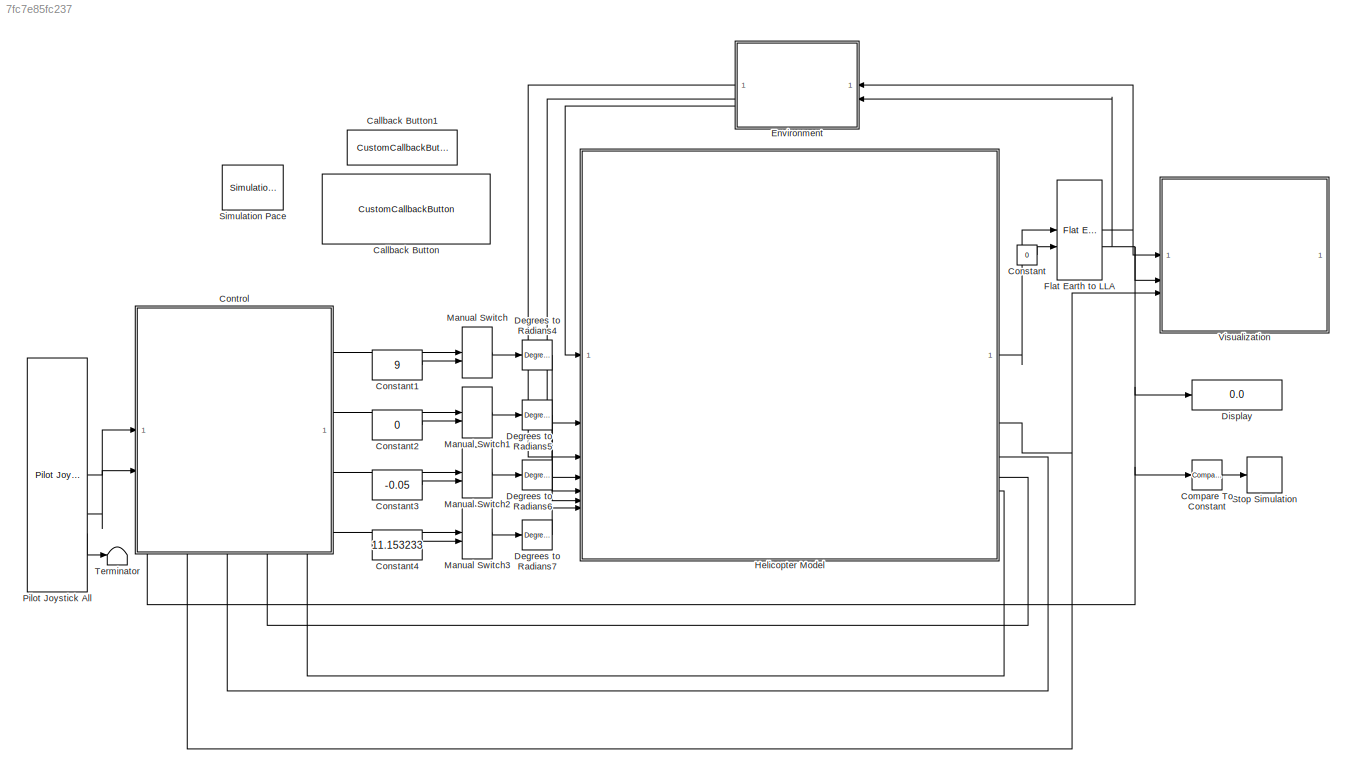
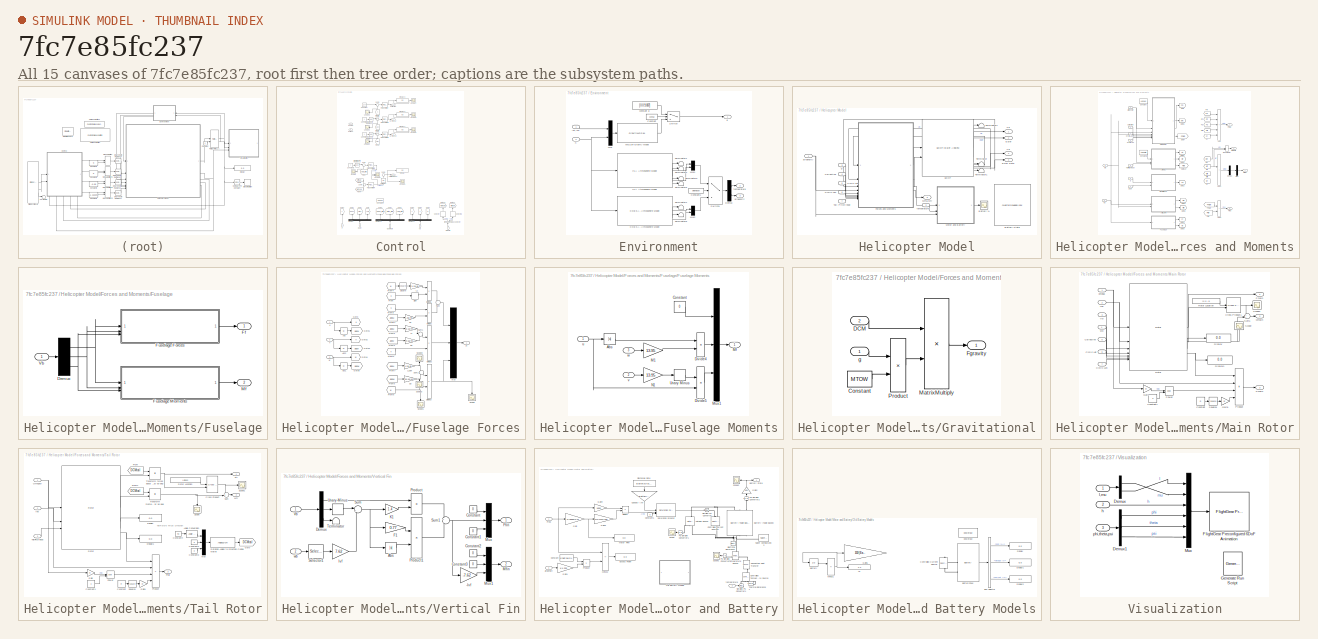
[diagram: thumbnail index - all 15 canvases of the model, root first then tree order]
MODEL slx_7fc7e85fc237
KIND model
CONFIG AbsTol = auto
CONFIG EnableMultiTasking = off
CONFIG FixedStep = auto
CONFIG MaxStep = auto
CONFIG MinStep = auto
CONFIG RelTol = 1e-3
CONFIG SampleTimeConstraint = Unconstrained
CONFIG SolverName = VariableStepAuto
CONFIG StartTime = 0.0
CONFIG StopTime = 120
BLOCK [CustomCallbackButton] Callback Button
  Configuration = {"components":[{"name":"BackgroundImageComponent","settings":{"image":{"size":[0,0],"src":"default","srcOrientation":"Right"},"position":[0,0,1,1]}},{"name":"ButtonStateComponent","settings":{"buttonType":"momentary","clickFcn":"run(\"HelicopterParameterEstimation.mlapp\");","onValue":1,"position":[0,0,1,1],"pressDelay":"500","pressFcn":"","repeatInterval":"0","states":[{"horizontalAlignment":"cen...<+2128ch>
  CustomBackgroundColor = {"color":[0.9568627451,0.9568627451,0.9568627451],"show":true}
BLOCK [CustomCallbackButton] Callback Button1
  Configuration = {"components":[{"name":"BackgroundImageComponent","settings":{"image":{"size":[0,0],"src":"default","srcOrientation":"Right"},"position":[0,0,1,1]}},{"name":"ButtonStateComponent","settings":{"buttonType":"momentary","clickFcn":"clc; clear; close all;","onValue":1,"position":[0,0,1,1],"pressDelay":"500","pressFcn":"","repeatInterval":"0","states":[{"horizontalAlignment":"center","image":{"position...<+2029ch>
  CustomBackgroundColor = {"color":[0.9568627451,0.9568627451,0.9568627451],"show":true}
BLOCK [Reference] Compare To Constant  REF=simulink/Logic and Bit
Operations/Compare
To Constant
  SourceBlock = simulink/Logic and Bit\nOperations/Compare\nTo Constant
  SourceType = Compare To Constant
BLOCK [Constant] Constant
  Value = 0
BLOCK [Constant] Constant1
  Value = 9
BLOCK [Constant] Constant2
  Value = 0
BLOCK [Constant] Constant3
  Value = -0.05
BLOCK [Constant] Constant4
  Value = 11.153233
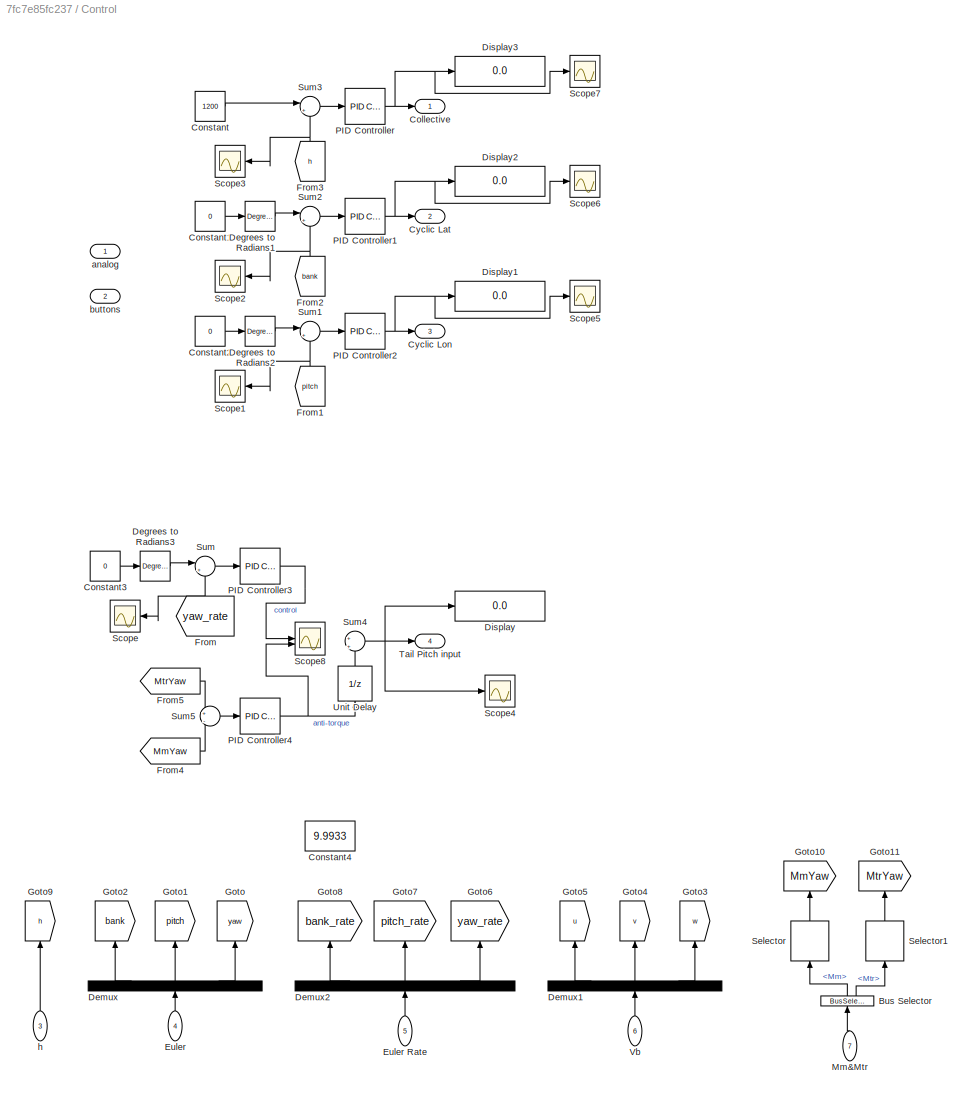
BLOCK [SubSystem] Control
  NameLocation = top
  PortSchema = {"entries":[{"content":{"sides":[{"content":{"connectorIds":["In1","In2"]},"type":"ConnectorPlacement.EquallySpacedRectSide","uuid":"528401e7-0fef-44be-ba63-acf96d247fb7"},{"content":{"connectorIds":["Out1","Out2","Out3","Out4"],"side":"RIGHT"},"type":"ConnectorPlacement.EquallySpacedRectSide","uuid":"314663aa-6cd9-4175-a49a-1575f8a7b87b"},{"content":{"side":"TOP"},"type":"ConnectorPlacement.Equal...<+422ch>
BLOCK [BusSelector] Control/Bus Selector
  NameLocation = right
  OutputSignals = Mm,Mtr
BLOCK [Outport] Control/Collective
  NameLocation = right
BLOCK [Constant] Control/Constant
  Value = 1200
BLOCK [Constant] Control/Constant1
  Value = 0
BLOCK [Constant] Control/Constant2
  Value = 0
BLOCK [Constant] Control/Constant3
  Value = 0
BLOCK [Constant] Control/Constant4
  Value = 9.9933
BLOCK [Outport] Control/Cyclic Lat
  NameLocation = right
  Port = 2
BLOCK [Outport] Control/Cyclic Lon
  NameLocation = right
  Port = 3
BLOCK [Reference] Control/Degrees to Radians1  REF=simulink_extras/Transformations/Degrees to
Radians
  SourceBlock = simulink_extras/Transformations/Degrees to\nRadians
  SourceType = DegreesToRadians
BLOCK [Reference] Control/Degrees to Radians2  REF=simulink_extras/Transformations/Degrees to
Radians
  SourceBlock = simulink_extras/Transformations/Degrees to\nRadians
  SourceType = DegreesToRadians
BLOCK [Reference] Control/Degrees to Radians3  REF=simulink_extras/Transformations/Degrees to
Radians
  SourceBlock = simulink_extras/Transformations/Degrees to\nRadians
  SourceType = DegreesToRadians
BLOCK [Demux] Control/Demux
  NameLocation = right
  Outputs = 3
BLOCK [Demux] Control/Demux1
  NameLocation = right
  Outputs = 3
BLOCK [Demux] Control/Demux2
  NameLocation = right
  Outputs = 3
BLOCK [Display] Control/Display
  Decimation = 1
BLOCK [Display] Control/Display1
  Decimation = 1
BLOCK [Display] Control/Display2
  Decimation = 1
BLOCK [Display] Control/Display3
  Decimation = 1
BLOCK [Inport] Control/Euler
  Port = 4
BLOCK [Inport] Control/Euler Rate
  Port = 5
BLOCK [From] Control/From
  GotoTag = yaw_rate
  NameLocation = right
BLOCK [From] Control/From1
  GotoTag = pitch
  NameLocation = right
BLOCK [From] Control/From2
  GotoTag = bank
  NameLocation = right
BLOCK [From] Control/From3
  GotoTag = h
  NameLocation = right
BLOCK [From] Control/From4
  GotoTag = MmYaw
BLOCK [From] Control/From5
  GotoTag = MtrYaw
BLOCK [Goto] Control/Goto
  GotoTag = yaw
  NameLocation = right
BLOCK [Goto] Control/Goto1
  GotoTag = pitch
  NameLocation = right
BLOCK [Goto] Control/Goto10
  GotoTag = MmYaw
  NameLocation = right
BLOCK [Goto] Control/Goto11
  GotoTag = MtrYaw
  NameLocation = right
BLOCK [Goto] Control/Goto2
  GotoTag = bank
  NameLocation = right
BLOCK [Goto] Control/Goto3
  GotoTag = w
  NameLocation = right
BLOCK [Goto] Control/Goto4
  GotoTag = v
  NameLocation = right
BLOCK [Goto] Control/Goto5
  GotoTag = u
  NameLocation = right
BLOCK [Goto] Control/Goto6
  GotoTag = yaw_rate
  NameLocation = right
BLOCK [Goto] Control/Goto7
  GotoTag = pitch_rate
  NameLocation = right
BLOCK [Goto] Control/Goto8
  GotoTag = bank_rate
  NameLocation = right
BLOCK [Goto] Control/Goto9
  GotoTag = h
  NameLocation = right
BLOCK [Inport] Control/Mm&Mtr
  NameLocation = right
  Port = 7
BLOCK [Reference] Control/PID Controller  REF=slpidlib/PID Controller
  LibrarySourceBlock = simulink/Continuous/PID Controller
  SourceBlock = slpidlib/PID Controller
  SourceType = PID 1dof
BLOCK [Reference] Control/PID Controller1  REF=slpidlib/PID Controller
  LibrarySourceBlock = simulink/Continuous/PID Controller
  SourceBlock = slpidlib/PID Controller
  SourceType = PID 1dof
BLOCK [Reference] Control/PID Controller2  REF=slpidlib/PID Controller
  LibrarySourceBlock = simulink/Continuous/PID Controller
  SourceBlock = slpidlib/PID Controller
  SourceType = PID 1dof
BLOCK [Reference] Control/PID Controller3  REF=slpidlib/PID Controller
  LibrarySourceBlock = simulink/Continuous/PID Controller
  SourceBlock = slpidlib/PID Controller
  SourceType = PID 1dof
BLOCK [Reference] Control/PID Controller4  REF=slpidlib/PID Controller
  LibrarySourceBlock = simulink/Continuous/PID Controller
  SourceBlock = slpidlib/PID Controller
  SourceType = PID 1dof
BLOCK [Scope] Control/Scope
  Floating = off
  NameLocation = top
  NumInputPorts = 1
  ScopeSpecificationString = Simulink.scopes.TimeScopeBlockCfg('CurrentConfiguration', extmgr.ConfigurationSet(extmgr.Configuration('Core','General UI',true),extmgr.Configuration('Core','Source UI',true),extmgr.Configuration('Sources','WiredSimulink',true,'DataLoggingVariableName','ScopeData1'),extmgr.Configuration('Visuals','Time Domain',true,'SerializedDisplays',{struct('MinYLimReal','-0.61545','MaxYLimReal','0.07319','YLab...<+1525ch>
BLOCK [Scope] Control/Scope1
  Floating = off
  NameLocation = top
  NumInputPorts = 1
  ScopeSpecificationString = Simulink.scopes.TimeScopeBlockCfg('CurrentConfiguration', extmgr.ConfigurationSet(extmgr.Configuration('Core','General UI',true),extmgr.Configuration('Core','Source UI',true),extmgr.Configuration('Sources','WiredSimulink',true,'DataLoggingVariableName','ScopeData2'),extmgr.Configuration('Visuals','Time Domain',true),extmgr.Configuration('Tools','Plot Navigation',true),extmgr.Configuration('Tools',...<+40ch>
BLOCK [Scope] Control/Scope2
  Floating = off
  NameLocation = top
  NumInputPorts = 1
  ScopeSpecificationString = Simulink.scopes.TimeScopeBlockCfg('CurrentConfiguration', extmgr.ConfigurationSet(extmgr.Configuration('Core','General UI',true),extmgr.Configuration('Core','Source UI',true),extmgr.Configuration('Sources','WiredSimulink',true,'DataLoggingVariableName','ScopeData3'),extmgr.Configuration('Visuals','Time Domain',true),extmgr.Configuration('Tools','Plot Navigation',true),extmgr.Configuration('Tools',...<+40ch>
BLOCK [Scope] Control/Scope3
  Floating = off
  NameLocation = top
  NumInputPorts = 1
  ScopeSpecificationString = Simulink.scopes.TimeScopeBlockCfg('CurrentConfiguration', extmgr.ConfigurationSet(extmgr.Configuration('Core','General UI',true),extmgr.Configuration('Core','Source UI',true),extmgr.Configuration('Sources','WiredSimulink',true,'DataLoggingVariableName','ScopeData4'),extmgr.Configuration('Visuals','Time Domain',true),extmgr.Configuration('Tools','Plot Navigation',true),extmgr.Configuration('Tools',...<+40ch>
BLOCK [Scope] Control/Scope4
  Floating = off
  NumInputPorts = 1
  ScopeSpecificationString = Simulink.scopes.TimeScopeBlockCfg('CurrentConfiguration', extmgr.ConfigurationSet(extmgr.Configuration('Core','General UI',true),extmgr.Configuration('Core','Source UI',true),extmgr.Configuration('Sources','WiredSimulink',true,'DataLoggingVariableName','ScopeData5'),extmgr.Configuration('Visuals','Time Domain',true),extmgr.Configuration('Tools','Plot Navigation',true),extmgr.Configuration('Tools',...<+40ch>
BLOCK [Scope] Control/Scope5
  Floating = off
  NumInputPorts = 1
  ScopeSpecificationString = Simulink.scopes.TimeScopeBlockCfg('CurrentConfiguration', extmgr.ConfigurationSet(extmgr.Configuration('Core','General UI',true),extmgr.Configuration('Core','Source UI',true),extmgr.Configuration('Sources','WiredSimulink',true,'DataLoggingVariableName','ScopeData6'),extmgr.Configuration('Visuals','Time Domain',true),extmgr.Configuration('Tools','Plot Navigation',true),extmgr.Configuration('Tools',...<+40ch>
BLOCK [Scope] Control/Scope6
  Floating = off
  NumInputPorts = 1
  ScopeSpecificationString = Simulink.scopes.TimeScopeBlockCfg('CurrentConfiguration', extmgr.ConfigurationSet(extmgr.Configuration('Core','General UI',true),extmgr.Configuration('Core','Source UI',true),extmgr.Configuration('Sources','WiredSimulink',true,'DataLoggingVariableName','ScopeData7'),extmgr.Configuration('Visuals','Time Domain',true),extmgr.Configuration('Tools','Plot Navigation',true),extmgr.Configuration('Tools',...<+40ch>
BLOCK [Scope] Control/Scope7
  Floating = off
  NumInputPorts = 1
  ScopeSpecificationString = Simulink.scopes.TimeScopeBlockCfg('CurrentConfiguration', extmgr.ConfigurationSet(extmgr.Configuration('Core','General UI',true),extmgr.Configuration('Core','Source UI',true),extmgr.Configuration('Sources','WiredSimulink',true,'DataLoggingVariableName','ScopeData8'),extmgr.Configuration('Visuals','Time Domain',true),extmgr.Configuration('Tools','Plot Navigation',true),extmgr.Configuration('Tools',...<+40ch>
BLOCK [Scope] Control/Scope8
  Floating = off
  NumInputPorts = 2
  ScopeSpecificationString = Simulink.scopes.TimeScopeBlockCfg('CurrentConfiguration', extmgr.ConfigurationSet(extmgr.Configuration('Core','General UI',true),extmgr.Configuration('Core','Source UI',true),extmgr.Configuration('Sources','WiredSimulink',true,'DataLoggingVariableName','ScopeData1'),extmgr.Configuration('Visuals','Time Domain',true,'SerializedDisplays',{struct('MinYLimReal','9.90027','MaxYLimReal','12.94432','YLab...<+1587ch>
BLOCK [Selector] Control/Selector
  IndexOptions = Index vector (dialog)
  Indices = [3]
  InputPortWidth = 3
  NameLocation = right
  OutputSizes = 1
BLOCK [Selector] Control/Selector1
  IndexOptions = Index vector (dialog)
  Indices = [3]
  InputPortWidth = 3
  NameLocation = right
  OutputSizes = 1
BLOCK [Sum] Control/Sum
  Inputs = |+-
BLOCK [Sum] Control/Sum1
  Inputs = |+-
BLOCK [Sum] Control/Sum2
  Inputs = |+-
BLOCK [Sum] Control/Sum3
  Inputs = |+-
BLOCK [Sum] Control/Sum4
  Inputs = +|+
BLOCK [Sum] Control/Sum5
  Inputs = +|-
BLOCK [Outport] Control/Tail Pitch input
  NameLocation = right
  Port = 4
BLOCK [UnitDelay] Control/Unit Delay
  HasFrameUpgradeWarning = on
  InitialCondition = 9.993
  NameLocation = right
  SampleTime = -1
BLOCK [Inport] Control/Vb
  Port = 6
BLOCK [Inport] Control/analog
BLOCK [Inport] Control/buttons
  Port = 2
BLOCK [Inport] Control/h
  Port = 3
BLOCK [Reference] Degrees to Radians4  REF=simulink_extras/Transformations/Degrees to
Radians
  SourceBlock = simulink_extras/Transformations/Degrees to\nRadians
  SourceType = DegreesToRadians
BLOCK [Reference] Degrees to Radians5  REF=simulink_extras/Transformations/Degrees to
Radians
  SourceBlock = simulink_extras/Transformations/Degrees to\nRadians
  SourceType = DegreesToRadians
BLOCK [Reference] Degrees to Radians6  REF=simulink_extras/Transformations/Degrees to
Radians
  SourceBlock = simulink_extras/Transformations/Degrees to\nRadians
  SourceType = DegreesToRadians
BLOCK [Reference] Degrees to Radians7  REF=simulink_extras/Transformations/Degrees to
Radians
  SourceBlock = simulink_extras/Transformations/Degrees to\nRadians
  SourceType = DegreesToRadians
BLOCK [Display] Display
  Decimation = 1
BLOCK [SubSystem] Environment
BLOCK [Reference] Environment/COESA Atmosphere Model  REF=aerolibatmos2/COESA Atmosphere Model
  SourceBlock = aerolibatmos2/COESA Atmosphere Model
  SourceType = Atmosphere Model
BLOCK [Constant] Environment/Constant
  Value = consg
BLOCK [Constant] Environment/Constant1
  Value = atmomodel
BLOCK [Demux] Environment/Demux
  Outputs = 2
BLOCK [Reference] Environment/ISA Atmosphere Model  REF=aerolibatmos2/ISA Atmosphere Model
  SourceBlock = aerolibatmos2/ISA Atmosphere Model
  SourceType = International Standard Atmosphere Model
BLOCK [Mux] Environment/Mux
  DisplayOption = bar
  Inputs = 2
BLOCK [Mux] Environment/Mux1
  DisplayOption = bar
  Inputs = 2
BLOCK [Mux] Environment/Mux2
  DisplayOption = bar
  Inputs = 2
BLOCK [Switch] Environment/Switch
  Criteria = u2 ~= 0
  InputSameDT = off
  SaturateOnIntegerOverflow = off
BLOCK [Switch] Environment/Switch1
  Criteria = u2 ~= 0
  InputSameDT = off
  SaturateOnIntegerOverflow = off
BLOCK [Terminator] Environment/Terminator1
BLOCK [Terminator] Environment/Terminator2
BLOCK [Terminator] Environment/Terminator3
BLOCK [Terminator] Environment/Terminator4
BLOCK [Terminator] Environment/Terminator5
BLOCK [Terminator] Environment/Terminator6
BLOCK [GravityWGS84] Environment/WGS84 Gravity Model  
BLOCK [Outport] Environment/airdensity
  NameLocation = right
  Port = 3
BLOCK [Constant] Environment/constant g
  NameLocation = top
  Value = [0 0 9.807]
BLOCK [Outport] Environment/g
  NameLocation = right
BLOCK [Inport] Environment/h
  NameLocation = left
  Port = 2
BLOCK [Inport] Environment/lat,lon
  NameLocation = left
BLOCK [Outport] Environment/temperature
  NameLocation = right
  Port = 2
BLOCK [Reference] Flat Earth to LLA  REF=aerolibtransform2/Flat Earth to LLA
  SourceBlock = aerolibtransform2/Flat Earth to LLA
  SourceType = Flat Earth to LLA
BLOCK [SubSystem] Helicopter Model
BLOCK [Reference] Helicopter Model/6DOF  REF=shared6dof/6DOF (Euler Angles)
  LibrarySourceBlock = aerolib6dof2/6DOF (Euler Angles)
  SourceBlock = shared6dof/6DOF (Euler Angles)
  SourceType = 6DOF EoM (Body Axis)
BLOCK [Scope] Helicopter Model/Battery %
  Floating = off
  NumInputPorts = 1
  ScopeSpecificationString = Simulink.scopes.TimeScopeBlockCfg('CurrentConfiguration', extmgr.ConfigurationSet(extmgr.Configuration('Core','General UI',true),extmgr.Configuration('Core','Source UI',true),extmgr.Configuration('Sources','WiredSimulink',true),extmgr.Configuration('Visuals','Time Domain',true,'SerializedDisplays',{struct('MinYLimReal','99.99858','MaxYLimReal','100.00016','YLabelReal','','MinYLimMag','99.99858','M...<+1461ch>
BLOCK [QuarterGaugeBlock] Helicopter Model/Battery State
  LabelPosition = Hide
BLOCK [Inport] Helicopter Model/Collective
  NameLocation = left
  Port = 4
BLOCK [Inport] Helicopter Model/Cyclic Lat
  NameLocation = left
  Port = 5
BLOCK [Inport] Helicopter Model/Cyclic Lon
  NameLocation = left
  Port = 6
BLOCK [Outport] Helicopter Model/Euler
  NameLocation = right
  Port = 2
BLOCK [Outport] Helicopter Model/Euler Rate
  NameLocation = right
  Port = 3
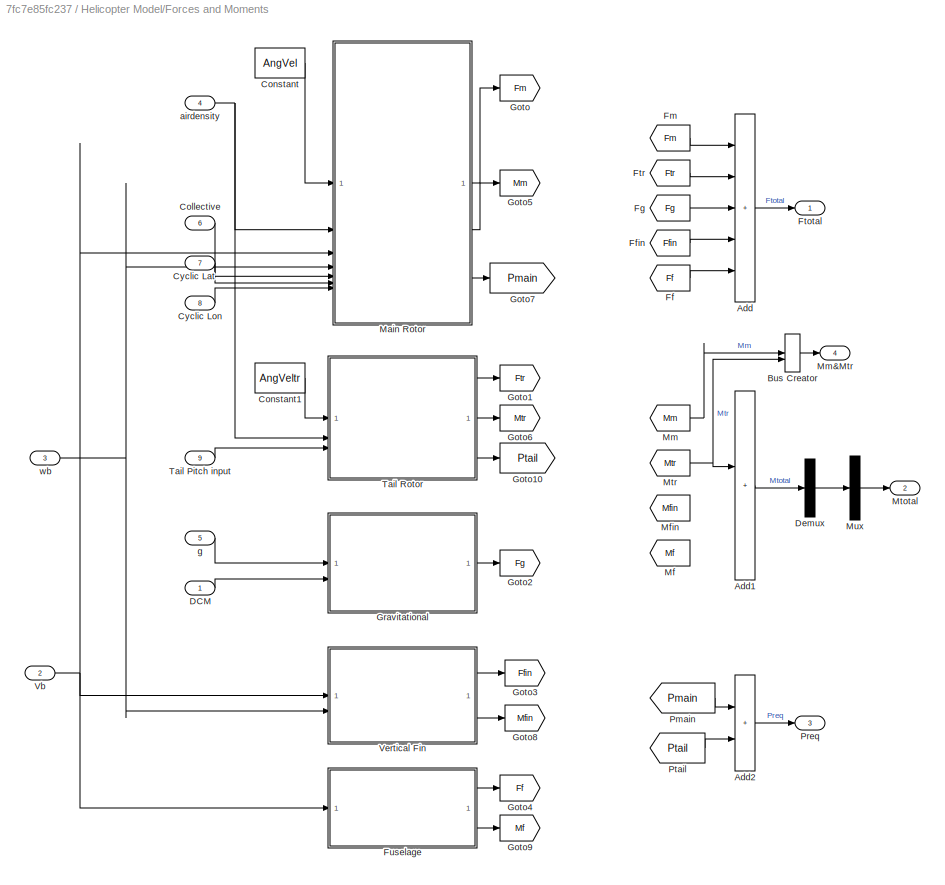
BLOCK [SubSystem] Helicopter Model/Forces and Moments
BLOCK [Sum] Helicopter Model/Forces and Moments/Add
  IconShape = rectangular
  Inputs = +++++
BLOCK [Sum] Helicopter Model/Forces and Moments/Add1
  IconShape = rectangular
  Inputs = ++++
BLOCK [Sum] Helicopter Model/Forces and Moments/Add2
  IconShape = rectangular
BLOCK [BusCreator] Helicopter Model/Forces and Moments/Bus Creator
  DisplayOption = bar
  InheritFromInputs = on
  Inputs = 2
BLOCK [Inport] Helicopter Model/Forces and Moments/Collective
  Port = 6
BLOCK [Constant] Helicopter Model/Forces and Moments/Constant
  Value = AngVel
BLOCK [Constant] Helicopter Model/Forces and Moments/Constant1
  Value = AngVeltr
BLOCK [Inport] Helicopter Model/Forces and Moments/Cyclic Lat
  Port = 7
BLOCK [Inport] Helicopter Model/Forces and Moments/Cyclic Lon
  Port = 8
BLOCK [Inport] Helicopter Model/Forces and Moments/DCM
BLOCK [Demux] Helicopter Model/Forces and Moments/Demux
  Outputs = 3
BLOCK [From] Helicopter Model/Forces and Moments/Ff
  GotoTag = Ff
  NameLocation = left
BLOCK [From] Helicopter Model/Forces and Moments/Ffin
  GotoTag = Ffin
  NameLocation = left
BLOCK [From] Helicopter Model/Forces and Moments/Fg
  GotoTag = Fg
  NameLocation = left
BLOCK [From] Helicopter Model/Forces and Moments/Fm
  GotoTag = Fm
  NameLocation = left
BLOCK [Outport] Helicopter Model/Forces and Moments/Ftotal
BLOCK [From] Helicopter Model/Forces and Moments/Ftr
  GotoTag = Ftr
  NameLocation = left
BLOCK [SubSystem] Helicopter Model/Forces and Moments/Fuselage
BLOCK [Demux] Helicopter Model/Forces and Moments/Fuselage/Demux
  Outputs = 3
BLOCK [Outport] Helicopter Model/Forces and Moments/Fuselage/Ff
BLOCK [SubSystem] Helicopter Model/Forces and Moments/Fuselage/Fuselage Forces
BLOCK [Abs] Helicopter Model/Forces and Moments/Fuselage/Fuselage Forces/Abs
  SaturateOnIntegerOverflow = off
BLOCK [Abs] Helicopter Model/Forces and Moments/Fuselage/Fuselage Forces/Abs1
  SaturateOnIntegerOverflow = off
BLOCK [Abs] Helicopter Model/Forces and Moments/Fuselage/Fuselage Forces/Abs2
  SaturateOnIntegerOverflow = off
BLOCK [Gain] Helicopter Model/Forces and Moments/Fuselage/Fuselage Forces/D1
  Gain = 1.05/40
BLOCK [Gain] Helicopter Model/Forces and Moments/Fuselage/Fuselage Forces/D2
  Gain = 9.62/40
BLOCK [Gain] Helicopter Model/Forces and Moments/Fuselage/Fuselage Forces/D3
  Gain = 30.92/40
BLOCK [Product] Helicopter Model/Forces and Moments/Fuselage/Fuselage Forces/Divide1
  Inputs = **
BLOCK [Product] Helicopter Model/Forces and Moments/Fuselage/Fuselage Forces/Divide2
  Inputs = **
BLOCK [Product] Helicopter Model/Forces and Moments/Fuselage/Fuselage Forces/Divide3
  Inputs = **
BLOCK [Product] Helicopter Model/Forces and Moments/Fuselage/Fuselage Forces/Divide6
  Inputs = **
BLOCK [Outport] Helicopter Model/Forces and Moments/Fuselage/Fuselage Forces/Ff
BLOCK [From] Helicopter Model/Forces and Moments/Fuselage/Fuselage Forces/From
  GotoTag = u
BLOCK [From] Helicopter Model/Forces and Moments/Fuselage/Fuselage Forces/From1
  GotoTag = absu
BLOCK [From] Helicopter Model/Forces and Moments/Fuselage/Fuselage Forces/From2
  GotoTag = v
BLOCK [From] Helicopter Model/Forces and Moments/Fuselage/Fuselage Forces/From3
  GotoTag = absv
BLOCK [From] Helicopter Model/Forces and Moments/Fuselage/Fuselage Forces/From4
  GotoTag = w
BLOCK [From] Helicopter Model/Forces and Moments/Fuselage/Fuselage Forces/From5
  GotoTag = absw
BLOCK [From] Helicopter Model/Forces and Moments/Fuselage/Fuselage Forces/From6
  GotoTag = absu
BLOCK [From] Helicopter Model/Forces and Moments/Fuselage/Fuselage Forces/From7
  GotoTag = absu
BLOCK [From] Helicopter Model/Forces and Moments/Fuselage/Fuselage Forces/From8
  GotoTag = u
BLOCK [From] Helicopter Model/Forces and Moments/Fuselage/Fuselage Forces/From9
  GotoTag = w
BLOCK [Goto] Helicopter Model/Forces and Moments/Fuselage/Fuselage Forces/Goto
  GotoTag = u
BLOCK [Goto] Helicopter Model/Forces and Moments/Fuselage/Fuselage Forces/Goto1
  GotoTag = absu
BLOCK [Goto] Helicopter Model/Forces and Moments/Fuselage/Fuselage Forces/Goto2
  GotoTag = v
BLOCK [Goto] Helicopter Model/Forces and Moments/Fuselage/Fuselage Forces/Goto3
  GotoTag = absv
BLOCK [Goto] Helicopter Model/Forces and Moments/Fuselage/Fuselage Forces/Goto4
  GotoTag = w
BLOCK [Goto] Helicopter Model/Forces and Moments/Fuselage/Fuselage Forces/Goto5
  GotoTag = absw
BLOCK [Gain] Helicopter Model/Forces and Moments/Fuselage/Fuselage Forces/L1
  Gain = 3.13/40
  NameLocation = top
BLOCK [Gain] Helicopter Model/Forces and Moments/Fuselage/Fuselage Forces/L1def
  Gain = 3.13/40
BLOCK [Mux] Helicopter Model/Forces and Moments/Fuselage/Fuselage Forces/Mux
  DisplayOption = bar
  Inputs = 3
BLOCK [Scope] Helicopter Model/Forces and Moments/Fuselage/Fuselage Forces/Scope
  Floating = off
  NameLocation = left
  NumInputPorts = 1
  ScopeSpecificationString = Simulink.scopes.TimeScopeBlockCfg('CurrentConfiguration', extmgr.ConfigurationSet(extmgr.Configuration('Core','General UI',true),extmgr.Configuration('Core','Source UI',true),extmgr.Configuration('Sources','WiredSimulink',true,'DataLoggingVariableName','ScopeData4'),extmgr.Configuration('Visuals','Time Domain',true,'SerializedDisplays',{struct('MinYLimReal','-476.9779','MaxYLimReal','53.05065','YL...<+1488ch>
BLOCK [Scope] Helicopter Model/Forces and Moments/Fuselage/Fuselage Forces/Scope1
  Floating = off
  NameLocation = left
  NumInputPorts = 1
  ScopeSpecificationString = Simulink.scopes.TimeScopeBlockCfg('CurrentConfiguration', extmgr.ConfigurationSet(extmgr.Configuration('Core','General UI',true),extmgr.Configuration('Core','Source UI',true),extmgr.Configuration('Sources','WiredSimulink',true,'DataLoggingVariableName','ScopeData5'),extmgr.Configuration('Visuals','Time Domain',true,'SerializedDisplays',{struct('MinYLimReal','-7.9208','MaxYLimReal','21.22673','YLab...<+1520ch>
BLOCK [Scope] Helicopter Model/Forces and Moments/Fuselage/Fuselage Forces/Scope2
  Floating = off
  NameLocation = right
  NumInputPorts = 1
  ScopeSpecificationString = Simulink.scopes.TimeScopeBlockCfg('CurrentConfiguration', extmgr.ConfigurationSet(extmgr.Configuration('Core','General UI',true),extmgr.Configuration('Core','Source UI',true),extmgr.Configuration('Sources','WiredSimulink',true,'DataLoggingVariableName','ScopeData6'),extmgr.Configuration('Visuals','Time Domain',true,'SerializedDisplays',{struct('MinYLimReal','-4580.96704','MaxYLimReal','41228.70337...<+1548ch>
BLOCK [Scope] Helicopter Model/Forces and Moments/Fuselage/Fuselage Forces/Scope3
  Floating = off
  NameLocation = left
  NumInputPorts = 1
  ScopeSpecificationString = Simulink.scopes.TimeScopeBlockCfg('CurrentConfiguration', extmgr.ConfigurationSet(extmgr.Configuration('Core','General UI',true),extmgr.Configuration('Core','Source UI',true),extmgr.Configuration('Sources','WiredSimulink',true,'DataLoggingVariableName','ScopeData7'),extmgr.Configuration('Visuals','Time Domain',true,'SerializedDisplays',{struct('MinYLimReal','-2.19925','MaxYLimReal','19.79323','YLa...<+1508ch>
BLOCK [Signum] Helicopter Model/Forces and Moments/Fuselage/Fuselage Forces/Sign
BLOCK [Math] Helicopter Model/Forces and Moments/Fuselage/Fuselage Forces/Square
  Operator = square
BLOCK [Sum] Helicopter Model/Forces and Moments/Fuselage/Fuselage Forces/Sum
  Inputs = +|-
BLOCK [Sum] Helicopter Model/Forces and Moments/Fuselage/Fuselage Forces/Sum1
  Inputs = -|-
BLOCK [Sum] Helicopter Model/Forces and Moments/Fuselage/Fuselage Forces/Sum2
  Inputs = -|-
BLOCK [Gain] Helicopter Model/Forces and Moments/Fuselage/Fuselage Forces/Y1
  Gain = 3.13/40
BLOCK [Inport] Helicopter Model/Forces and Moments/Fuselage/Fuselage Forces/u
BLOCK [Inport] Helicopter Model/Forces and Moments/Fuselage/Fuselage Forces/v
  Port = 2
BLOCK [Inport] Helicopter Model/Forces and Moments/Fuselage/Fuselage Forces/w
  Port = 3
BLOCK [SubSystem] Helicopter Model/Forces and Moments/Fuselage/Fuselage Moments
BLOCK [Abs] Helicopter Model/Forces and Moments/Fuselage/Fuselage Moments/Abs
  SaturateOnIntegerOverflow = off
BLOCK [Constant] Helicopter Model/Forces and Moments/Fuselage/Fuselage Moments/Constant
  Value = 0
BLOCK [Product] Helicopter Model/Forces and Moments/Fuselage/Fuselage Moments/Divide4
  Inputs = **
BLOCK [Product] Helicopter Model/Forces and Moments/Fuselage/Fuselage Moments/Divide5
  Inputs = **
BLOCK [Gain] Helicopter Model/Forces and Moments/Fuselage/Fuselage Moments/M1
  Gain = 13.95
BLOCK [Outport] Helicopter Model/Forces and Moments/Fuselage/Fuselage Moments/Mf
BLOCK [Mux] Helicopter Model/Forces and Moments/Fuselage/Fuselage Moments/Mux1
  DisplayOption = bar
  Inputs = 3
BLOCK [Gain] Helicopter Model/Forces and Moments/Fuselage/Fuselage Moments/N1
  Gain = 13.95
BLOCK [UnaryMinus] Helicopter Model/Forces and Moments/Fuselage/Fuselage Moments/Unary Minus
BLOCK [Inport] Helicopter Model/Forces and Moments/Fuselage/Fuselage Moments/u
BLOCK [Inport] Helicopter Model/Forces and Moments/Fuselage/Fuselage Moments/v
  Port = 2
BLOCK [Inport] Helicopter Model/Forces and Moments/Fuselage/Fuselage Moments/w
  Port = 3
BLOCK [Outport] Helicopter Model/Forces and Moments/Fuselage/Mf
  Port = 2
BLOCK [Inport] Helicopter Model/Forces and Moments/Fuselage/Vb
BLOCK [Goto] Helicopter Model/Forces and Moments/Goto
  GotoTag = Fm
BLOCK [Goto] Helicopter Model/Forces and Moments/Goto1
  GotoTag = Ftr
BLOCK [Goto] Helicopter Model/Forces and Moments/Goto10
  GotoTag = Ptail
BLOCK [Goto] Helicopter Model/Forces and Moments/Goto2
  GotoTag = Fg
BLOCK [Goto] Helicopter Model/Forces and Moments/Goto3
  GotoTag = Ffin
BLOCK [Goto] Helicopter Model/Forces and Moments/Goto4
  GotoTag = Ff
BLOCK [Goto] Helicopter Model/Forces and Moments/Goto5
  GotoTag = Mm
BLOCK [Goto] Helicopter Model/Forces and Moments/Goto6
  GotoTag = Mtr
BLOCK [Goto] Helicopter Model/Forces and Moments/Goto7
  GotoTag = Pmain
BLOCK [Goto] Helicopter Model/Forces and Moments/Goto8
  GotoTag = Mfin
BLOCK [Goto] Helicopter Model/Forces and Moments/Goto9
  GotoTag = Mf
BLOCK [SubSystem] Helicopter Model/Forces and Moments/Gravitational
BLOCK [Constant] Helicopter Model/Forces and Moments/Gravitational/Constant
  Value = MTOW
BLOCK [Inport] Helicopter Model/Forces and Moments/Gravitational/DCM
  NameLocation = left
  Port = 2
BLOCK [Outport] Helicopter Model/Forces and Moments/Gravitational/Fgravity
  NameLocation = right
BLOCK [Product] Helicopter Model/Forces and Moments/Gravitational/MatrixMultiply
  Multiplication = Matrix(*)
BLOCK [Product] Helicopter Model/Forces and Moments/Gravitational/Product
BLOCK [Inport] Helicopter Model/Forces and Moments/Gravitational/g
  NameLocation = left
BLOCK [SubSystem] Helicopter Model/Forces and Moments/Main Rotor
BLOCK [Inport] Helicopter Model/Forces and Moments/Main Rotor/Collective
  Port = 5
BLOCK [Constant] Helicopter Model/Forces and Moments/Main Rotor/Constant
  Value = R
BLOCK [Constant] Helicopter Model/Forces and Moments/Main Rotor/Constant1
  Value = 3
BLOCK [Reference] Helicopter Model/Forces and Moments/Main Rotor/Cross Product1  REF=matrix_library/Cross Product
  SourceBlock = matrix_library/Cross Product
  SourceType = CrossProduct
BLOCK [Inport] Helicopter Model/Forces and Moments/Main Rotor/Cyclic Lat
  Port = 6
BLOCK [Inport] Helicopter Model/Forces and Moments/Main Rotor/Cyclic Lon
  Port = 7
BLOCK [Display] Helicopter Model/Forces and Moments/Main Rotor/Display
  Decimation = 1
BLOCK [Display] Helicopter Model/Forces and Moments/Main Rotor/Display1
  Decimation = 1
BLOCK [Outport] Helicopter Model/Forces and Moments/Main Rotor/Fmain
  NameLocation = right
BLOCK [Gain] Helicopter Model/Forces and Moments/Main Rotor/Gain
  Gain = R
BLOCK [Gain] Helicopter Model/Forces and Moments/Main Rotor/Gain1
  Gain = pi
BLOCK [Outport] Helicopter Model/Forces and Moments/Main Rotor/Mmain
  NameLocation = right
  Port = 2
BLOCK [Outport] Helicopter Model/Forces and Moments/Main Rotor/Pmain
  NameLocation = right
  Port = 3
BLOCK [Math] Helicopter Model/Forces and Moments/Main Rotor/Power
  Operator = pow
BLOCK [Product] Helicopter Model/Forces and Moments/Main Rotor/Product
  Inputs = 4
BLOCK [Rotor] Helicopter Model/Forces and Moments/Main Rotor/Rotor
  CTCQMode = Compute using BEMT
  CTout = on
  Nb = Nb
  cd0 = 0.009
  chord = c
  clalpha = 5
  controlInput = on
  gamma = 10
  hingeOffset = 0.05
  modelMode = With flap effects
  radius = R
  thetaRoot = 0.1
  thetaTwist = -0.1
BLOCK [Constant] Helicopter Model/Forces and Moments/Main Rotor/Rotor Location
  Value = [0 0 -1]
  VectorParams1D = off
BLOCK [Scope] Helicopter Model/Forces and Moments/Main Rotor/Scope
  Floating = off
  NameLocation = left
  NumInputPorts = 1
  ScopeSpecificationString = Simulink.scopes.TimeScopeBlockCfg('CurrentConfiguration', extmgr.ConfigurationSet(extmgr.Configuration('Core','General UI',true),extmgr.Configuration('Core','Source UI',true),extmgr.Configuration('Sources','WiredSimulink',true,'DataLoggingVariableName','ScopeData10'),extmgr.Configuration('Visuals','Time Domain',true,'SerializedDisplays',{struct('MinYLimReal','-136.01042','MaxYLimReal','15.11227','...<+1517ch>
BLOCK [Scope] Helicopter Model/Forces and Moments/Main Rotor/Scope1
  Floating = off
  NumInputPorts = 1
  ScopeSpecificationString = Simulink.scopes.TimeScopeBlockCfg('CurrentConfiguration', extmgr.ConfigurationSet(extmgr.Configuration('Core','General UI',true),extmgr.Configuration('Core','Source UI',true),extmgr.Configuration('Sources','WiredSimulink',true,'DataLoggingVariableName','ScopeData11'),extmgr.Configuration('Visuals','Time Domain',true,'SerializedDisplays',{struct('MinYLimReal','-532.75448','MaxYLimReal','492.21737',...<+1609ch>
BLOCK [Math] Helicopter Model/Forces and Moments/Main Rotor/Square1
  Operator = square
BLOCK [Sum] Helicopter Model/Forces and Moments/Main Rotor/Sum1
  Inputs = ++|
BLOCK [Inport] Helicopter Model/Forces and Moments/Main Rotor/Vb
  Port = 3
BLOCK [Inport] Helicopter Model/Forces and Moments/Main Rotor/omega
BLOCK [Inport] Helicopter Model/Forces and Moments/Main Rotor/rho
  Port = 2
BLOCK [Inport] Helicopter Model/Forces and Moments/Main Rotor/wb
  Port = 4
BLOCK [From] Helicopter Model/Forces and Moments/Mf
  GotoTag = Mf
  NameLocation = left
BLOCK [From] Helicopter Model/Forces and Moments/Mfin
  GotoTag = Mfin
  NameLocation = left
BLOCK [From] Helicopter Model/Forces and Moments/Mm
  GotoTag = Mm
  NameLocation = left
BLOCK [Outport] Helicopter Model/Forces and Moments/Mm&Mtr
  Port = 4
BLOCK [Outport] Helicopter Model/Forces and Moments/Mtotal
  Port = 2
BLOCK [From] Helicopter Model/Forces and Moments/Mtr
  GotoTag = Mtr
  NameLocation = left
BLOCK [Mux] Helicopter Model/Forces and Moments/Mux
  DisplayOption = bar
  Inputs = 3
BLOCK [From] Helicopter Model/Forces and Moments/Pmain
  GotoTag = Pmain
  NameLocation = left
BLOCK [Outport] Helicopter Model/Forces and Moments/Preq
  Port = 3
BLOCK [From] Helicopter Model/Forces and Moments/Ptail
  GotoTag = Ptail
  NameLocation = left
BLOCK [Inport] Helicopter Model/Forces and Moments/Tail Pitch input
  Port = 9
BLOCK [SubSystem] Helicopter Model/Forces and Moments/Tail Rotor
BLOCK [Reference] Helicopter Model/Forces and Moments/Tail Rotor/Angle Conversion  REF=aerolibconvert2/Angle Conversion
  SourceBlock = aerolibconvert2/Angle Conversion
  SourceType = Angle Conversion
BLOCK [Constant] Helicopter Model/Forces and Moments/Tail Rotor/Constant
  Value = R
BLOCK [Constant] Helicopter Model/Forces and Moments/Tail Rotor/Constant1
  Value = 3
BLOCK [Constant] Helicopter Model/Forces and Moments/Tail Rotor/Constant2
  Value = 0
BLOCK [Constant] Helicopter Model/Forces and Moments/Tail Rotor/Constant3
  Value = 0
BLOCK [Constant] Helicopter Model/Forces and Moments/Tail Rotor/Constant4
  Value = 90
BLOCK [Reference] Helicopter Model/Forces and Moments/Tail Rotor/Cross Product  REF=matrix_library/Cross Product
  LibrarySourceBlock = simulink/Matrix\nOperations/Cross Product
  SourceBlock = matrix_library/Cross Product
  SourceType = CrossProduct
BLOCK [Display] Helicopter Model/Forces and Moments/Tail Rotor/Display
  Decimation = 1
BLOCK [Display] Helicopter Model/Forces and Moments/Tail Rotor/Display1
  Decimation = 1
BLOCK [From] Helicopter Model/Forces and Moments/Tail Rotor/From
  GotoTag = DCMtail
BLOCK [From] Helicopter Model/Forces and Moments/Tail Rotor/From1
  GotoTag = DCMtail
BLOCK [Outport] Helicopter Model/Forces and Moments/Tail Rotor/Ftr
BLOCK [Gain] Helicopter Model/Forces and Moments/Tail Rotor/Gain
  Gain = R
BLOCK [Gain] Helicopter Model/Forces and Moments/Tail Rotor/Gain1
  Gain = pi
BLOCK [Goto] Helicopter Model/Forces and Moments/Tail Rotor/Goto
  GotoTag = DCMtail
BLOCK [Outport] Helicopter Model/Forces and Moments/Tail Rotor/Mtr
  Port = 2
BLOCK [Mux] Helicopter Model/Forces and Moments/Tail Rotor/Mux
  DisplayOption = bar
  Inputs = 3
BLOCK [Inport] Helicopter Model/Forces and Moments/Tail Rotor/Omegatr
BLOCK [Math] Helicopter Model/Forces and Moments/Tail Rotor/Power
  Operator = pow
BLOCK [Product] Helicopter Model/Forces and Moments/Tail Rotor/Product
  Inputs = 4
BLOCK [Outport] Helicopter Model/Forces and Moments/Tail Rotor/Ptail
  Port = 3
BLOCK [Angle2Dcm] Helicopter Model/Forces and Moments/Tail Rotor/Rotation Angles to Direction Cosine Matrix
  AttributesFormatString = Rotation Order: %<rotationOrder>
  rotationOrder = XYZ
BLOCK [Rotor] Helicopter Model/Forces and Moments/Tail Rotor/Rotor
  CTCQMode = Compute using BEMT
  CTout = on
  Nb = Nbtr
  cd0 = 0.009
  chord = 0.08
  controlInput = on
  hingeOffset = 0.05
  radius = Rtr+0.255
  thetaRoot = 0
  thetaTwist = 0
BLOCK [Constant] Helicopter Model/Forces and Moments/Tail Rotor/Rotor Location
  Value = [-Lfin 0 0]
  VectorParams1D = off
BLOCK [Scope] Helicopter Model/Forces and Moments/Tail Rotor/Scope
  Floating = off
  NameLocation = left
  NumInputPorts = 1
  ScopeSpecificationString = Simulink.scopes.TimeScopeBlockCfg('CurrentConfiguration', extmgr.ConfigurationSet(extmgr.Configuration('Core','General UI',true),extmgr.Configuration('Core','Source UI',true),extmgr.Configuration('Sources','WiredSimulink',true,'DataLoggingVariableName','ScopeData8'),extmgr.Configuration('Visuals','Time Domain',true,'SerializedDisplays',{struct('MinYLimReal','-2.2556','MaxYLimReal','0.25062','YLabe...<+1669ch>
BLOCK [Scope] Helicopter Model/Forces and Moments/Tail Rotor/Scope1
  Floating = off
  NumInputPorts = 1
  ScopeSpecificationString = Simulink.scopes.TimeScopeBlockCfg('CurrentConfiguration', extmgr.ConfigurationSet(extmgr.Configuration('Core','General UI',true),extmgr.Configuration('Core','Source UI',true),extmgr.Configuration('Sources','WiredSimulink',true,'DataLoggingVariableName','ScopeData9'),extmgr.Configuration('Visuals','Time Domain',true,'SerializedDisplays',{struct('MinYLimReal','-15.11227','MaxYLimReal','136.0104','YL...<+1573ch>
BLOCK [Math] Helicopter Model/Forces and Moments/Tail Rotor/Square1
  Operator = square
BLOCK [Sum] Helicopter Model/Forces and Moments/Tail Rotor/Sum
  Inputs = ++|
BLOCK [Inport] Helicopter Model/Forces and Moments/Tail Rotor/Tail Pitch input
  Port = 3
BLOCK [Product] Helicopter Model/Forces and Moments/Tail Rotor/Transform forces about x-axis by 90 deg 
  Multiplication = Matrix(*)
BLOCK [Product] Helicopter Model/Forces and Moments/Tail Rotor/Transform moments about x-axis by 90 deg
  Multiplication = Matrix(*)
BLOCK [Inport] Helicopter Model/Forces and Moments/Tail Rotor/rho
  Port = 2
BLOCK [Inport] Helicopter Model/Forces and Moments/Vb
  Port = 2
BLOCK [SubSystem] Helicopter Model/Forces and Moments/Vertical Fin
BLOCK [Gain] Helicopter Model/Forces and Moments/Vertical Fin/-lvf
  Gain = -7.62
BLOCK [Abs] Helicopter Model/Forces and Moments/Vertical Fin/Abs
  SaturateOnIntegerOverflow = off
BLOCK [Constant] Helicopter Model/Forces and Moments/Vertical Fin/Constant
  Value = 0
BLOCK [Constant] Helicopter Model/Forces and Moments/Vertical Fin/Constant1
  Value = 0
BLOCK [Constant] Helicopter Model/Forces and Moments/Vertical Fin/Constant2
  Value = 0
BLOCK [Constant] Helicopter Model/Forces and Moments/Vertical Fin/Constant3
  Value = 0
BLOCK [Demux] Helicopter Model/Forces and Moments/Vertical Fin/Demux
  Outputs = 3
BLOCK [Gain] Helicopter Model/Forces and Moments/Vertical Fin/F1
  Gain = 0.77
BLOCK [Outport] Helicopter Model/Forces and Moments/Vertical Fin/Ffin
BLOCK [Gain] Helicopter Model/Forces and Moments/Vertical Fin/K1
  Gain = 1.4
BLOCK [Outport] Helicopter Model/Forces and Moments/Vertical Fin/Mfin
  Port = 2
BLOCK [Mux] Helicopter Model/Forces and Moments/Vertical Fin/Mux
  DisplayOption = bar
  Inputs = 3
BLOCK [Mux] Helicopter Model/Forces and Moments/Vertical Fin/Mux1
  DisplayOption = bar
  Inputs = 3
BLOCK [Product] Helicopter Model/Forces and Moments/Vertical Fin/Product
BLOCK [Product] Helicopter Model/Forces and Moments/Vertical Fin/Product1
BLOCK [Selector] Helicopter Model/Forces and Moments/Vertical Fin/Selector1
  IndexOptions = Index vector (dialog)
  Indices = [3]
  InputPortWidth = 3
  OutputSizes = 1
BLOCK [Sum] Helicopter Model/Forces and Moments/Vertical Fin/Sum
  Inputs = |++
BLOCK [Sum] Helicopter Model/Forces and Moments/Vertical Fin/Sum1
  Inputs = +|+
BLOCK [Terminator] Helicopter Model/Forces and Moments/Vertical Fin/Terminator
BLOCK [UnaryMinus] Helicopter Model/Forces and Moments/Vertical Fin/Unary Minus
BLOCK [Inport] Helicopter Model/Forces and Moments/Vertical Fin/Vb
BLOCK [Gain] Helicopter Model/Forces and Moments/Vertical Fin/lvf
  Gain = 7.62
BLOCK [Inport] Helicopter Model/Forces and Moments/Vertical Fin/wb
  Port = 2
BLOCK [Inport] Helicopter Model/Forces and Moments/airdensity
  Port = 4
BLOCK [Inport] Helicopter Model/Forces and Moments/g
  Port = 5
BLOCK [Inport] Helicopter Model/Forces and Moments/wb
  Port = 3
BLOCK [Outport] Helicopter Model/Mm&Mtr
  Port = 5
BLOCK [SubSystem] Helicopter Model/Motor and Battery
BLOCK [Reference] Helicopter Model/Motor and Battery/Battery (Table-Based)  REF=batteryecm_lib/Battery
(Table-Based)
  AttributesFormatString = Valence:U27_36XP
  LibrarySourceBlock = batt_lib/Cells/Battery\n(Table-Based)
  NameLocation = right
  SourceBlock = batteryecm_lib/Battery\n(Table-Based)
  SourceType = Battery\n(Table-Based)
BLOCK [Outport] Helicopter Model/Motor and Battery/Battery State
  NameLocation = right
BLOCK [Gain] Helicopter Model/Motor and Battery/Capacity (Ah)
  Gain = BatteryCap/1000
  NameLocation = right
BLOCK [Constant] Helicopter Model/Motor and Battery/Constant
  Value = EngPowSL
BLOCK [Constant] Helicopter Model/Motor and Battery/Constant1
  Value = 0
BLOCK [Reference] Helicopter Model/Motor and Battery/Controlled Current Source1  REF=fl_lib/Electrical/Electrical Sources/Controlled Current
Source
  NameLocation = left
  SourceBlock = fl_lib/Electrical/Electrical Sources/Controlled Current\nSource
  SourceType = Controlled Current\nSource
BLOCK [Reference] Helicopter Model/Motor and Battery/Controlled Temperature Source  REF=fl_lib/Thermal/Thermal Sources/Controlled
Temperature Source
  NameLocation = right
  SourceBlock = fl_lib/Thermal/Thermal Sources/Controlled\nTemperature Source
  SourceType = Controlled\nTemperature Source
BLOCK [Reference] Helicopter Model/Motor and Battery/Convective Heat Transfer  REF=fl_lib/Thermal/Thermal Elements/Convective Heat
Transfer
  NameLocation = left
  SourceBlock = fl_lib/Thermal/Thermal Elements/Convective Heat\nTransfer
  SourceType = Convective Heat\nTransfer
BLOCK [Constant] Helicopter Model/Motor and Battery/Discharge Rate
  NameLocation = top
  Value = BatteryDischrgRate
BLOCK [Product] Helicopter Model/Motor and Battery/Divide1
  Inputs = */
BLOCK [Reference] Helicopter Model/Motor and Battery/Electrical Reference  REF=fl_lib/Electrical/Electrical Elements/Electrical Reference
  LibrarySourceBlock = ee_lib/Connectors &\nReferences/Electrical Reference
  NameLocation = right
  SourceBlock = fl_lib/Electrical/Electrical Elements/Electrical Reference
  SourceType = Electrical Reference
BLOCK [Display] Helicopter Model/Motor and Battery/Excess Power
  Decimation = 1
  NameLocation = right
BLOCK [Gain] Helicopter Model/Motor and Battery/Gain
  Gain = Preq2RPM
BLOCK [Gain] Helicopter Model/Motor and Battery/Gain1
  Gain = 1/1.225
BLOCK [Gain] Helicopter Model/Motor and Battery/Gain2
  Gain = 100
  NameLocation = right
BLOCK [Gain] Helicopter Model/Motor and Battery/Gain3
  Gain = RPM2Vreq
BLOCK [Gain] Helicopter Model/Motor and Battery/Gain4
  Gain = 1000
BLOCK [Sum] Helicopter Model/Motor and Battery/Minus2
  IconShape = rectangular
  Inputs = -+
BLOCK [Display] Helicopter Model/Motor and Battery/Motor RPM
  Decimation = 1
  NameLocation = right
BLOCK [SubSystem] Helicopter Model/Motor and Battery/Old Battery Models
  Commented = on
BLOCK [Display] Helicopter Model/Motor and Battery/Old Battery Models/Ah
  Decimation = 1
  Format = bank
  NameLocation = right
BLOCK [UnitDelay] Helicopter Model/Motor and Battery/Old Battery Models/Battery
  HasFrameUpgradeWarning = on
  InitialCondition = BatteryCap*3600/1000
  NameLocation = top
BLOCK [Reference] Helicopter Model/Motor and Battery/Old Battery Models/BatteryPack  REF=spsBatteryLib/Battery
  LibrarySourceBlock = sps_lib/Sources/Battery
  SourceBlock = spsBatteryLib/Battery
  SourceType = Battery
BLOCK [BusSelector] Helicopter Model/Motor and Battery/Old Battery Models/Bus Selector
  NameLocation = top
  OutputSignals = SOC (%),Voltage (V),Current (A)
BLOCK [Reference] Helicopter Model/Motor and Battery/Old Battery Models/Controlled Current Source  REF=spsControlledCurrentSourceLib/Controlled Current Source
  LibrarySourceBlock = sps_lib/Sources/Controlled Current Source
  NameLocation = top
  SourceBlock = spsControlledCurrentSourceLib/Controlled Current Source
  SourceType = Controlled Current Source
BLOCK [Display] Helicopter Model/Motor and Battery/Old Battery Models/Display
  Decimation = 1
  NameLocation = top
BLOCK [Display] Helicopter Model/Motor and Battery/Old Battery Models/Display1
  Decimation = 1
  NameLocation = top
BLOCK [Display] Helicopter Model/Motor and Battery/Old Battery Models/Display2
  Decimation = 1
  NameLocation = top
BLOCK [Gain] Helicopter Model/Motor and Battery/Old Battery Models/Gain5
  Gain = 100/(BatteryCap*3600/1000)
BLOCK [Sum] Helicopter Model/Motor and Battery/Old Battery Models/Minus1
  IconShape = rectangular
  Inputs = +-
BLOCK [Reference] Helicopter Model/Motor and Battery/Old Battery Models/powergui  REF=spspowerguiLib/powergui
  LibrarySourceBlock = sps_lib/powergui
  Priority = 1
  SourceBlock = spspowerguiLib/powergui
  SourceType = PSB option menu block
BLOCK [Reference] Helicopter Model/Motor and Battery/PS-Simulink Converter  REF=nesl_utility/PS-Simulink
Converter
  NameLocation = top
  SourceBlock = nesl_utility/PS-Simulink\nConverter
  SourceType = PS-Simulink\nConverter
BLOCK [Reference] Helicopter Model/Motor and Battery/PS-Simulink Converter1  REF=nesl_utility/PS-Simulink
Converter
  NameLocation = top
  SourceBlock = nesl_utility/PS-Simulink\nConverter
  SourceType = PS-Simulink\nConverter
BLOCK [Reference] Helicopter Model/Motor and Battery/PS-Simulink Converter2  REF=nesl_utility/PS-Simulink
Converter
  NameLocation = right
  SourceBlock = nesl_utility/PS-Simulink\nConverter
  SourceType = PS-Simulink\nConverter
BLOCK [Inport] Helicopter Model/Motor and Battery/Preq
  NameLocation = left
BLOCK [Product] Helicopter Model/Motor and Battery/Product
BLOCK [Reference] Helicopter Model/Motor and Battery/Saturation Dynamic  REF=simulink/Discontinuities/Saturation
Dynamic
  NameLocation = top
  SourceBlock = simulink/Discontinuities/Saturation\nDynamic
  SourceType = Saturation Dynamic
BLOCK [Scope] Helicopter Model/Motor and Battery/Scope
  Floating = off
  NameLocation = top
  NumInputPorts = 1
  ScopeSpecificationString = Simulink.scopes.TimeScopeBlockCfg('CurrentConfiguration', extmgr.ConfigurationSet(extmgr.Configuration('Core','General UI',true),extmgr.Configuration('Core','Source UI',true),extmgr.Configuration('Sources','WiredSimulink',true,'DataLoggingVariableName','ScopeData1'),extmgr.Configuration('Visuals','Time Domain',true,'SerializedDisplays',{struct('MinYLimReal','68.97885','MaxYLimReal','68.9824','YLab...<+1497ch>
BLOCK [Scope] Helicopter Model/Motor and Battery/Scope1
  Floating = off
  NameLocation = top
  NumInputPorts = 1
  ScopeSpecificationString = Simulink.scopes.TimeScopeBlockCfg('CurrentConfiguration', extmgr.ConfigurationSet(extmgr.Configuration('Core','General UI',true),extmgr.Configuration('Core','Source UI',true),extmgr.Configuration('Sources','WiredSimulink',true,'DataLoggingVariableName','ScopeData2'),extmgr.Configuration('Visuals','Time Domain',true,'SerializedDisplays',{struct('MinYLimReal','288.12128','MaxYLimReal','288.40849','Y...<+1508ch>
BLOCK [Scope] Helicopter Model/Motor and Battery/Scope2
  Floating = off
  NameLocation = top
  NumInputPorts = 1
  ScopeSpecificationString = Simulink.scopes.TimeScopeBlockCfg('CurrentConfiguration', extmgr.ConfigurationSet(extmgr.Configuration('Core','General UI',true),extmgr.Configuration('Core','Source UI',true),extmgr.Configuration('Sources','WiredSimulink',true,'DataLoggingVariableName','ScopeData3'),extmgr.Configuration('Visuals','Time Domain',true,'SerializedDisplays',{struct('MinYLimReal','-10','MaxYLimReal','10','YLabelReal',''...<+849ch>
BLOCK [Reference] Helicopter Model/Motor and Battery/Simulink-PS Converter  REF=nesl_utility/Simulink-PS
Converter
  SourceBlock = nesl_utility/Simulink-PS\nConverter
  SourceType = Simulink-PS\nConverter
BLOCK [Reference] Helicopter Model/Motor and Battery/Simulink-PS Converter1  REF=nesl_utility/Simulink-PS
Converter
  SourceBlock = nesl_utility/Simulink-PS\nConverter
  SourceType = Simulink-PS\nConverter
BLOCK [Reference] Helicopter Model/Motor and Battery/Solver Configuration  REF=nesl_utility/Solver
Configuration
  NameLocation = top
  SourceBlock = nesl_utility/Solver\nConfiguration
  SourceType = Solver\nConfiguration
BLOCK [Reference] Helicopter Model/Motor and Battery/Temperature Sensor  REF=fl_lib/Thermal/Thermal Sensors/Temperature Sensor
  NameLocation = top
  SourceBlock = fl_lib/Thermal/Thermal Sensors/Temperature Sensor
  SourceType = Temperature Sensor
BLOCK [Reference] Helicopter Model/Motor and Battery/Thermal Reference1  REF=fl_lib/Thermal/Thermal Elements/Thermal Reference
  NameLocation = top
  SourceBlock = fl_lib/Thermal/Thermal Elements/Thermal Reference
  SourceType = Thermal Reference
BLOCK [Reference] Helicopter Model/Motor and Battery/Voltage Sensor  REF=fl_lib/Electrical/Electrical Sensors/Voltage Sensor
  NameLocation = right
  SourceBlock = fl_lib/Electrical/Electrical Sensors/Voltage Sensor
  SourceType = Voltage Sensor
BLOCK [Inport] Helicopter Model/Motor and Battery/airdensity
  Port = 3
BLOCK [Inport] Helicopter Model/Motor and Battery/temperature
  Port = 2
BLOCK [Inport] Helicopter Model/Tail Pitch input
  NameLocation = left
  Port = 7
BLOCK [Terminator] Helicopter Model/Terminator
  NameLocation = right
BLOCK [Terminator] Helicopter Model/Terminator1
  NameLocation = right
BLOCK [Terminator] Helicopter Model/Terminator2
BLOCK [Outport] Helicopter Model/Vb
  NameLocation = right
  Port = 4
BLOCK [Outport] Helicopter Model/Xe
  NameLocation = right
BLOCK [Inport] Helicopter Model/airdensity
  NameLocation = left
BLOCK [Inport] Helicopter Model/g
  NameLocation = left
  Port = 3
BLOCK [Inport] Helicopter Model/temperature
  Port = 2
BLOCK [ManualSwitch] Manual Switch
  CurrentSetting = 0
BLOCK [ManualSwitch] Manual Switch1
  CurrentSetting = 0
BLOCK [ManualSwitch] Manual Switch2
  CurrentSetting = 0
BLOCK [ManualSwitch] Manual Switch3
  CurrentSetting = 0
BLOCK [Reference] Pilot Joystick All  REF=aerolibanimutils/Pilot Joystick
  LibrarySourceBlock = aerolibanimutils/Pilot Joystick All
  SourceBlock = aerolibanimutils/Pilot Joystick
  SourceType = PilotJoystick
BLOCK [Reference] Simulation Pace  REF=aerolibanimutils/Simulation Pace
  AttributesFormatString = %<SleepMode>\n%<SimulationPace> sec/sec
  Commented = on
  SourceBlock = aerolibanimutils/Simulation Pace
  SourceType = Simulation Pace
BLOCK [Stop] Stop Simulation
BLOCK [Terminator] Terminator
BLOCK [SubSystem] Visualization
BLOCK [Demux] Visualization/Demux
  Outputs = 2
BLOCK [Demux] Visualization/Demux1
  Outputs = 3
BLOCK [Reference] Visualization/FlightGear Preconfigured 6DoF Animation  REF=aerolibfltsims/FlightGear
Preconfigured
6DoF Animation
  SourceBlock = aerolibfltsims/FlightGear\nPreconfigured\n6DoF Animation
  SourceType = FlightGearQuick6DoFAnimation
BLOCK [Reference] Visualization/Generate Run Script   REF=aerolibfltsims/Generate
Run Script
  SourceBlock = aerolibfltsims/Generate\nRun Script
  SourceType = Generate FlightGear Run Script
BLOCK [Mux] Visualization/Mux
  DisplayOption = bar
  Inputs = 6
BLOCK [Inport] Visualization/h
  Port = 2
BLOCK [Inport] Visualization/l,mu
BLOCK [Inport] Visualization/phi,theta,psi
  Port = 3
ANNOTATION Helicopter Model/Forces and Moments/Tail Rotor: Tail Rotor's Thrust Direction
LINE Compare To Constant:1 -> Stop Simulation:1
LINE Constant1:1 -> Manual Switch:2
LINE Constant2:1 -> Manual Switch1:2
LINE Constant3:1 -> Manual Switch2:2
LINE Constant4:1 -> Manual Switch3:2
LINE Constant:1 -> Flat Earth to LLA:2
LINE Control/Bus Selector:1 -> Control/Selector:1
LINE Control/Bus Selector:2 -> Control/Selector1:1
LINE Control/Constant1:1 -> Control/Degrees to Radians1:1
LINE Control/Constant2:1 -> Control/Degrees to Radians2:1
LINE Control/Constant3:1 -> Control/Degrees to Radians3:1
LINE Control/Constant:1 -> Control/Sum3:1
LINE Control/Degrees to Radians1:1 -> Control/Sum2:1
LINE Control/Degrees to Radians2:1 -> Control/Sum1:1
LINE Control/Degrees to Radians3:1 -> Control/Sum:1
LINE Control/Demux1:1 -> Control/Goto5:1
LINE Control/Demux1:2 -> Control/Goto4:1
LINE Control/Demux1:3 -> Control/Goto3:1
LINE Control/Demux2:1 -> Control/Goto8:1
LINE Control/Demux2:2 -> Control/Goto7:1
LINE Control/Demux2:3 -> Control/Goto6:1
LINE Control/Demux:1 -> Control/Goto2:1
LINE Control/Demux:2 -> Control/Goto1:1
LINE Control/Demux:3 -> Control/Goto:1
LINE Control/Euler Rate:1 -> Control/Demux2:1
LINE Control/Euler:1 -> Control/Demux:1
NET Control/From1:1 -> Control/Scope1:1, Control/Sum1:2
NET Control/From2:1 -> Control/Scope2:1, Control/Sum2:2
NET Control/From3:1 -> Control/Scope3:1, Control/Sum3:2
LINE Control/From4:1 -> Control/Sum5:2
LINE Control/From5:1 -> Control/Sum5:1
NET Control/From:1 -> Control/Scope:1, Control/Sum:2
LINE Control/Mm&Mtr:1 -> Control/Bus Selector:1
NET Control/PID Controller1:1 -> Control/Cyclic Lat:1, Control/Display2:1, Control/Scope6:1
NET Control/PID Controller2:1 -> Control/Cyclic Lon:1, Control/Display1:1, Control/Scope5:1
LINE Control/PID Controller3:1 -> Control/Scope8:1
NET Control/PID Controller4:1 -> Control/Scope8:2, Control/Unit Delay:1
NET Control/PID Controller:1 -> Control/Collective:1, Control/Display3:1, Control/Scope7:1
LINE Control/Selector1:1 -> Control/Goto11:1
LINE Control/Selector:1 -> Control/Goto10:1
LINE Control/Sum1:1 -> Control/PID Controller2:1
LINE Control/Sum2:1 -> Control/PID Controller1:1
LINE Control/Sum3:1 -> Control/PID Controller:1
NET Control/Sum4:1 -> Control/Display:1, Control/Scope4:1, Control/Tail Pitch input:1
LINE Control/Sum5:1 -> Control/PID Controller4:1
LINE Control/Sum:1 -> Control/PID Controller3:1
LINE Control/Unit Delay:1 -> Control/Sum4:2
LINE Control/Vb:1 -> Control/Demux1:1
LINE Control/h:1 -> Control/Goto9:1
LINE Control:1 -> Manual Switch:1
LINE Control:2 -> Manual Switch1:1
LINE Control:3 -> Manual Switch2:1
LINE Control:4 -> Manual Switch3:1
LINE Degrees to Radians4:1 -> Helicopter Model:4
LINE Degrees to Radians5:1 -> Helicopter Model:5
LINE Degrees to Radians6:1 -> Helicopter Model:6
LINE Degrees to Radians7:1 -> Helicopter Model:7
LINE Environment/COESA Atmosphere Model:1 -> Environment/Mux2:1
LINE Environment/COESA Atmosphere Model:2 -> Environment/Terminator4:1
LINE Environment/COESA Atmosphere Model:3 -> Environment/Terminator5:1
LINE Environment/COESA Atmosphere Model:4 -> Environment/Mux2:2
LINE Environment/Constant1:1 -> Environment/Switch1:2
LINE Environment/Constant:1 -> Environment/Switch:2
LINE Environment/Demux:1 -> Environment/temperature:1
LINE Environment/Demux:2 -> Environment/airdensity:1
LINE Environment/ISA Atmosphere Model:1 -> Environment/Mux1:1
LINE Environment/ISA Atmosphere Model:2 -> Environment/Terminator1:1
LINE Environment/ISA Atmosphere Model:3 -> Environment/Terminator2:1
LINE Environment/ISA Atmosphere Model:4 -> Environment/Mux1:2
LINE Environment/ISA Atmosphere Model:5 -> Environment/Terminator3:1
LINE Environment/ISA Atmosphere Model:6 -> Environment/Terminator6:1
LINE Environment/Mux1:1 -> Environment/Switch1:1
LINE Environment/Mux2:1 -> Environment/Switch1:3
LINE Environment/Mux:1 -> Environment/WGS84 Gravity Model  :1
LINE Environment/Switch1:1 -> Environment/Demux:1
LINE Environment/Switch:1 -> Environment/g:1
LINE Environment/WGS84 Gravity Model  :1 -> Environment/Switch:3
LINE Environment/constant g:1 -> Environment/Switch:1
NET Environment/h:1 -> Environment/COESA Atmosphere Model:1, Environment/ISA Atmosphere Model:1, Environment/Mux:2
LINE Environment/lat,lon:1 -> Environment/Mux:1
LINE Environment:1 -> Helicopter Model:3
LINE Environment:2 -> Helicopter Model:2
LINE Environment:3 -> Helicopter Model:1
NET Flat Earth to LLA:1 -> Environment:1, Visualization:1
NET Flat Earth to LLA:2 -> Compare To Constant:1, Control:3, Display:1, Environment:2, Visualization:2
LINE Helicopter Model/6DOF:1 -> Helicopter Model/Terminator2:1
LINE Helicopter Model/6DOF:2 -> Helicopter Model/Xe:1
LINE Helicopter Model/6DOF:3 -> Helicopter Model/Euler:1
LINE Helicopter Model/6DOF:4 -> Helicopter Model/Forces and Moments:1
NET Helicopter Model/6DOF:5 -> Helicopter Model/Forces and Moments:2, Helicopter Model/Vb:1
NET Helicopter Model/6DOF:6 -> Helicopter Model/Euler Rate:1, Helicopter Model/Forces and Moments:3
LINE Helicopter Model/6DOF:7 -> Helicopter Model/Terminator:1
LINE Helicopter Model/6DOF:8 -> Helicopter Model/Terminator1:1
LINE Helicopter Model/Collective:1 -> Helicopter Model/Forces and Moments:6
LINE Helicopter Model/Cyclic Lat:1 -> Helicopter Model/Forces and Moments:7
LINE Helicopter Model/Cyclic Lon:1 -> Helicopter Model/Forces and Moments:8
LINE Helicopter Model/Forces and Moments/Add1:1 -> Helicopter Model/Forces and Moments/Demux:1
LINE Helicopter Model/Forces and Moments/Add2:1 -> Helicopter Model/Forces and Moments/Preq:1
LINE Helicopter Model/Forces and Moments/Add:1 -> Helicopter Model/Forces and Moments/Ftotal:1
LINE Helicopter Model/Forces and Moments/Bus Creator:1 -> Helicopter Model/Forces and Moments/Mm&Mtr:1
LINE Helicopter Model/Forces and Moments/Collective:1 -> Helicopter Model/Forces and Moments/Main Rotor:5
LINE Helicopter Model/Forces and Moments/Constant1:1 -> Helicopter Model/Forces and Moments/Tail Rotor:1
LINE Helicopter Model/Forces and Moments/Constant:1 -> Helicopter Model/Forces and Moments/Main Rotor:1
LINE Helicopter Model/Forces and Moments/Cyclic Lat:1 -> Helicopter Model/Forces and Moments/Main Rotor:6
LINE Helicopter Model/Forces and Moments/Cyclic Lon:1 -> Helicopter Model/Forces and Moments/Main Rotor:7
LINE Helicopter Model/Forces and Moments/DCM:1 -> Helicopter Model/Forces and Moments/Gravitational:2
LINE Helicopter Model/Forces and Moments/Demux:2 -> Helicopter Model/Forces and Moments/Mux:2
LINE Helicopter Model/Forces and Moments/Ff:1 -> Helicopter Model/Forces and Moments/Add:5
LINE Helicopter Model/Forces and Moments/Ffin:1 -> Helicopter Model/Forces and Moments/Add:4
LINE Helicopter Model/Forces and Moments/Fg:1 -> Helicopter Model/Forces and Moments/Add:3
LINE Helicopter Model/Forces and Moments/Fm:1 -> Helicopter Model/Forces and Moments/Add:1
LINE Helicopter Model/Forces and Moments/Ftr:1 -> Helicopter Model/Forces and Moments/Add:2
NET Helicopter Model/Forces and Moments/Fuselage/Demux:1 -> Helicopter Model/Forces and Moments/Fuselage/Fuselage Forces:1, Helicopter Model/Forces and Moments/Fuselage/Fuselage Moments:1
NET Helicopter Model/Forces and Moments/Fuselage/Demux:2 -> Helicopter Model/Forces and Moments/Fuselage/Fuselage Forces:2, Helicopter Model/Forces and Moments/Fuselage/Fuselage Moments:2
NET Helicopter Model/Forces and Moments/Fuselage/Demux:3 -> Helicopter Model/Forces and Moments/Fuselage/Fuselage Forces:3, Helicopter Model/Forces and Moments/Fuselage/Fuselage Moments:3
LINE Helicopter Model/Forces and Moments/Fuselage/Fuselage Forces/Abs1:1 -> Helicopter Model/Forces and Moments/Fuselage/Fuselage Forces/Goto5:1
LINE Helicopter Model/Forces and Moments/Fuselage/Fuselage Forces/Abs2:1 -> Helicopter Model/Forces and Moments/Fuselage/Fuselage Forces/Goto3:1
LINE Helicopter Model/Forces and Moments/Fuselage/Fuselage Forces/Abs:1 -> Helicopter Model/Forces and Moments/Fuselage/Fuselage Forces/Goto1:1
LINE Helicopter Model/Forces and Moments/Fuselage/Fuselage Forces/D1:1 -> Helicopter Model/Forces and Moments/Fuselage/Fuselage Forces/Divide1:2
LINE Helicopter Model/Forces and Moments/Fuselage/Fuselage Forces/D2:1 -> Helicopter Model/Forces and Moments/Fuselage/Fuselage Forces/Sum1:2
NET Helicopter Model/Forces and Moments/Fuselage/Fuselage Forces/D3:1 -> Helicopter Model/Forces and Moments/Fuselage/Fuselage Forces/Scope3:1, Helicopter Model/Forces and Moments/Fuselage/Fuselage Forces/Sum2:2
LINE Helicopter Model/Forces and Moments/Fuselage/Fuselage Forces/Divide1:1 -> Helicopter Model/Forces and Moments/Fuselage/Fuselage Forces/Sum:2
LINE Helicopter Model/Forces and Moments/Fuselage/Fuselage Forces/Divide2:1 -> Helicopter Model/Forces and Moments/Fuselage/Fuselage Forces/Mux:2
NET Helicopter Model/Forces and Moments/Fuselage/Fuselage Forces/Divide3:1 -> Helicopter Model/Forces and Moments/Fuselage/Fuselage Forces/Mux:3, Helicopter Model/Forces and Moments/Fuselage/Fuselage Forces/Scope:1
LINE Helicopter Model/Forces and Moments/Fuselage/Fuselage Forces/Divide6:1 -> Helicopter Model/Forces and Moments/Fuselage/Fuselage Forces/Sum:1
LINE Helicopter Model/Forces and Moments/Fuselage/Fuselage Forces/From1:1 -> Helicopter Model/Forces and Moments/Fuselage/Fuselage Forces/D1:1
LINE Helicopter Model/Forces and Moments/Fuselage/Fuselage Forces/From2:1 -> Helicopter Model/Forces and Moments/Fuselage/Fuselage Forces/Divide2:2
LINE Helicopter Model/Forces and Moments/Fuselage/Fuselage Forces/From3:1 -> Helicopter Model/Forces and Moments/Fuselage/Fuselage Forces/D2:1
LINE Helicopter Model/Forces and Moments/Fuselage/Fuselage Forces/From4:1 -> Helicopter Model/Forces and Moments/Fuselage/Fuselage Forces/Square:1
LINE Helicopter Model/Forces and Moments/Fuselage/Fuselage Forces/From5:1 -> Helicopter Model/Forces and Moments/Fuselage/Fuselage Forces/D3:1
LINE Helicopter Model/Forces and Moments/Fuselage/Fuselage Forces/From6:1 -> Helicopter Model/Forces and Moments/Fuselage/Fuselage Forces/Y1:1
LINE Helicopter Model/Forces and Moments/Fuselage/Fuselage Forces/From7:1 -> Helicopter Model/Forces and Moments/Fuselage/Fuselage Forces/L1def:1
LINE Helicopter Model/Forces and Moments/Fuselage/Fuselage Forces/From8:1 -> Helicopter Model/Forces and Moments/Fuselage/Fuselage Forces/Divide1:1
NET Helicopter Model/Forces and Moments/Fuselage/Fuselage Forces/From9:1 -> Helicopter Model/Forces and Moments/Fuselage/Fuselage Forces/Divide3:2, Helicopter Model/Forces and Moments/Fuselage/Fuselage Forces/Scope1:1
LINE Helicopter Model/Forces and Moments/Fuselage/Fuselage Forces/From:1 -> Helicopter Model/Forces and Moments/Fuselage/Fuselage Forces/Sign:1
LINE Helicopter Model/Forces and Moments/Fuselage/Fuselage Forces/L1:1 -> Helicopter Model/Forces and Moments/Fuselage/Fuselage Forces/Divide6:1
NET Helicopter Model/Forces and Moments/Fuselage/Fuselage Forces/L1def:1 -> Helicopter Model/Forces and Moments/Fuselage/Fuselage Forces/Scope2:1, Helicopter Model/Forces and Moments/Fuselage/Fuselage Forces/Sum2:1
LINE Helicopter Model/Forces and Moments/Fuselage/Fuselage Forces/Mux:1 -> Helicopter Model/Forces and Moments/Fuselage/Fuselage Forces/Ff:1
LINE Helicopter Model/Forces and Moments/Fuselage/Fuselage Forces/Sign:1 -> Helicopter Model/Forces and Moments/Fuselage/Fuselage Forces/Divide6:2
LINE Helicopter Model/Forces and Moments/Fuselage/Fuselage Forces/Square:1 -> Helicopter Model/Forces and Moments/Fuselage/Fuselage Forces/L1:1
LINE Helicopter Model/Forces and Moments/Fuselage/Fuselage Forces/Sum1:1 -> Helicopter Model/Forces and Moments/Fuselage/Fuselage Forces/Divide2:1
LINE Helicopter Model/Forces and Moments/Fuselage/Fuselage Forces/Sum2:1 -> Helicopter Model/Forces and Moments/Fuselage/Fuselage Forces/Divide3:1
LINE Helicopter Model/Forces and Moments/Fuselage/Fuselage Forces/Sum:1 -> Helicopter Model/Forces and Moments/Fuselage/Fuselage Forces/Mux:1
LINE Helicopter Model/Forces and Moments/Fuselage/Fuselage Forces/Y1:1 -> Helicopter Model/Forces and Moments/Fuselage/Fuselage Forces/Sum1:1
NET Helicopter Model/Forces and Moments/Fuselage/Fuselage Forces/u:1 -> Helicopter Model/Forces and Moments/Fuselage/Fuselage Forces/Abs:1, Helicopter Model/Forces and Moments/Fuselage/Fuselage Forces/Goto:1
NET Helicopter Model/Forces and Moments/Fuselage/Fuselage Forces/v:1 -> Helicopter Model/Forces and Moments/Fuselage/Fuselage Forces/Abs2:1, Helicopter Model/Forces and Moments/Fuselage/Fuselage Forces/Goto2:1
NET Helicopter Model/Forces and Moments/Fuselage/Fuselage Forces/w:1 -> Helicopter Model/Forces and Moments/Fuselage/Fuselage Forces/Abs1:1, Helicopter Model/Forces and Moments/Fuselage/Fuselage Forces/Goto4:1
LINE Helicopter Model/Forces and Moments/Fuselage/Fuselage Forces:1 -> Helicopter Model/Forces and Moments/Fuselage/Ff:1
LINE Helicopter Model/Forces and Moments/Fuselage/Fuselage Moments/Abs:1 -> Helicopter Model/Forces and Moments/Fuselage/Fuselage Moments/Divide4:1
LINE Helicopter Model/Forces and Moments/Fuselage/Fuselage Moments/Constant:1 -> Helicopter Model/Forces and Moments/Fuselage/Fuselage Moments/Mux1:1
LINE Helicopter Model/Forces and Moments/Fuselage/Fuselage Moments/Divide4:1 -> Helicopter Model/Forces and Moments/Fuselage/Fuselage Moments/Mux1:2
LINE Helicopter Model/Forces and Moments/Fuselage/Fuselage Moments/Divide5:1 -> Helicopter Model/Forces and Moments/Fuselage/Fuselage Moments/Mux1:3
LINE Helicopter Model/Forces and Moments/Fuselage/Fuselage Moments/M1:1 -> Helicopter Model/Forces and Moments/Fuselage/Fuselage Moments/Divide4:2
LINE Helicopter Model/Forces and Moments/Fuselage/Fuselage Moments/Mux1:1 -> Helicopter Model/Forces and Moments/Fuselage/Fuselage Moments/Mf:1
LINE Helicopter Model/Forces and Moments/Fuselage/Fuselage Moments/N1:1 -> Helicopter Model/Forces and Moments/Fuselage/Fuselage Moments/Unary Minus:1
LINE Helicopter Model/Forces and Moments/Fuselage/Fuselage Moments/Unary Minus:1 -> Helicopter Model/Forces and Moments/Fuselage/Fuselage Moments/Divide5:1
NET Helicopter Model/Forces and Moments/Fuselage/Fuselage Moments/u:1 -> Helicopter Model/Forces and Moments/Fuselage/Fuselage Moments/Abs:1, Helicopter Model/Forces and Moments/Fuselage/Fuselage Moments/Divide5:2
LINE Helicopter Model/Forces and Moments/Fuselage/Fuselage Moments/v:1 -> Helicopter Model/Forces and Moments/Fuselage/Fuselage Moments/N1:1
LINE Helicopter Model/Forces and Moments/Fuselage/Fuselage Moments/w:1 -> Helicopter Model/Forces and Moments/Fuselage/Fuselage Moments/M1:1
LINE Helicopter Model/Forces and Moments/Fuselage/Fuselage Moments:1 -> Helicopter Model/Forces and Moments/Fuselage/Mf:1
LINE Helicopter Model/Forces and Moments/Fuselage/Vb:1 -> Helicopter Model/Forces and Moments/Fuselage/Demux:1
LINE Helicopter Model/Forces and Moments/Fuselage:1 -> Helicopter Model/Forces and Moments/Goto4:1
LINE Helicopter Model/Forces and Moments/Fuselage:2 -> Helicopter Model/Forces and Moments/Goto9:1
LINE Helicopter Model/Forces and Moments/Gravitational/Constant:1 -> Helicopter Model/Forces and Moments/Gravitational/Product:2
LINE Helicopter Model/Forces and Moments/Gravitational/DCM:1 -> Helicopter Model/Forces and Moments/Gravitational/MatrixMultiply:1
LINE Helicopter Model/Forces and Moments/Gravitational/MatrixMultiply:1 -> Helicopter Model/Forces and Moments/Gravitational/Fgravity:1
LINE Helicopter Model/Forces and Moments/Gravitational/Product:1 -> Helicopter Model/Forces and Moments/Gravitational/MatrixMultiply:2
LINE Helicopter Model/Forces and Moments/Gravitational/g:1 -> Helicopter Model/Forces and Moments/Gravitational/Product:1
LINE Helicopter Model/Forces and Moments/Gravitational:1 -> Helicopter Model/Forces and Moments/Goto2:1
LINE Helicopter Model/Forces and Moments/Main Rotor/Collective:1 -> Helicopter Model/Forces and Moments/Main Rotor/Rotor:5
LINE Helicopter Model/Forces and Moments/Main Rotor/Constant1:1 -> Helicopter Model/Forces and Moments/Main Rotor/Power:2
LINE Helicopter Model/Forces and Moments/Main Rotor/Constant:1 -> Helicopter Model/Forces and Moments/Main Rotor/Square1:1
NET Helicopter Model/Forces and Moments/Main Rotor/Cross Product1:1 -> Helicopter Model/Forces and Moments/Main Rotor/Scope1:1, Helicopter Model/Forces and Moments/Main Rotor/Sum1:1
LINE Helicopter Model/Forces and Moments/Main Rotor/Cyclic Lat:1 -> Helicopter Model/Forces and Moments/Main Rotor/Rotor:6
LINE Helicopter Model/Forces and Moments/Main Rotor/Cyclic Lon:1 -> Helicopter Model/Forces and Moments/Main Rotor/Rotor:7
LINE Helicopter Model/Forces and Moments/Main Rotor/Gain1:1 -> Helicopter Model/Forces and Moments/Main Rotor/Product:4
LINE Helicopter Model/Forces and Moments/Main Rotor/Gain:1 -> Helicopter Model/Forces and Moments/Main Rotor/Power:1
LINE Helicopter Model/Forces and Moments/Main Rotor/Power:1 -> Helicopter Model/Forces and Moments/Main Rotor/Product:3
LINE Helicopter Model/Forces and Moments/Main Rotor/Product:1 -> Helicopter Model/Forces and Moments/Main Rotor/Pmain:1
LINE Helicopter Model/Forces and Moments/Main Rotor/Rotor Location:1 -> Helicopter Model/Forces and Moments/Main Rotor/Cross Product1:1
NET Helicopter Model/Forces and Moments/Main Rotor/Rotor:1 -> Helicopter Model/Forces and Moments/Main Rotor/Cross Product1:2, Helicopter Model/Forces and Moments/Main Rotor/Fmain:1
NET Helicopter Model/Forces and Moments/Main Rotor/Rotor:2 -> Helicopter Model/Forces and Moments/Main Rotor/Scope:1, Helicopter Model/Forces and Moments/Main Rotor/Sum1:2
LINE Helicopter Model/Forces and Moments/Main Rotor/Rotor:3 -> Helicopter Model/Forces and Moments/Main Rotor/Display:1
NET Helicopter Model/Forces and Moments/Main Rotor/Rotor:4 -> Helicopter Model/Forces and Moments/Main Rotor/Display1:1, Helicopter Model/Forces and Moments/Main Rotor/Product:1
LINE Helicopter Model/Forces and Moments/Main Rotor/Square1:1 -> Helicopter Model/Forces and Moments/Main Rotor/Gain1:1
LINE Helicopter Model/Forces and Moments/Main Rotor/Sum1:1 -> Helicopter Model/Forces and Moments/Main Rotor/Mmain:1
LINE Helicopter Model/Forces and Moments/Main Rotor/Vb:1 -> Helicopter Model/Forces and Moments/Main Rotor/Rotor:3
NET Helicopter Model/Forces and Moments/Main Rotor/omega:1 -> Helicopter Model/Forces and Moments/Main Rotor/Gain:1, Helicopter Model/Forces and Moments/Main Rotor/Rotor:1
NET Helicopter Model/Forces and Moments/Main Rotor/rho:1 -> Helicopter Model/Forces and Moments/Main Rotor/Product:2, Helicopter Model/Forces and Moments/Main Rotor/Rotor:2
LINE Helicopter Model/Forces and Moments/Main Rotor/wb:1 -> Helicopter Model/Forces and Moments/Main Rotor/Rotor:4
LINE Helicopter Model/Forces and Moments/Main Rotor:1 -> Helicopter Model/Forces and Moments/Goto:1
LINE Helicopter Model/Forces and Moments/Main Rotor:2 -> Helicopter Model/Forces and Moments/Goto5:1
LINE Helicopter Model/Forces and Moments/Main Rotor:3 -> Helicopter Model/Forces and Moments/Goto7:1
LINE Helicopter Model/Forces and Moments/Mm:1 -> Helicopter Model/Forces and Moments/Bus Creator:1
NET Helicopter Model/Forces and Moments/Mtr:1 -> Helicopter Model/Forces and Moments/Add1:2, Helicopter Model/Forces and Moments/Bus Creator:2
LINE Helicopter Model/Forces and Moments/Mux:1 -> Helicopter Model/Forces and Moments/Mtotal:1
LINE Helicopter Model/Forces and Moments/Pmain:1 -> Helicopter Model/Forces and Moments/Add2:1
LINE Helicopter Model/Forces and Moments/Ptail:1 -> Helicopter Model/Forces and Moments/Add2:2
LINE Helicopter Model/Forces and Moments/Tail Pitch input:1 -> Helicopter Model/Forces and Moments/Tail Rotor:3
LINE Helicopter Model/Forces and Moments/Tail Rotor/Angle Conversion:1 -> Helicopter Model/Forces and Moments/Tail Rotor/Mux:1
LINE Helicopter Model/Forces and Moments/Tail Rotor/Constant1:1 -> Helicopter Model/Forces and Moments/Tail Rotor/Power:2
LINE Helicopter Model/Forces and Moments/Tail Rotor/Constant2:1 -> Helicopter Model/Forces and Moments/Tail Rotor/Mux:2
LINE Helicopter Model/Forces and Moments/Tail Rotor/Constant3:1 -> Helicopter Model/Forces and Moments/Tail Rotor/Mux:3
LINE Helicopter Model/Forces and Moments/Tail Rotor/Constant4:1 -> Helicopter Model/Forces and Moments/Tail Rotor/Angle Conversion:1
LINE Helicopter Model/Forces and Moments/Tail Rotor/Constant:1 -> Helicopter Model/Forces and Moments/Tail Rotor/Square1:1
NET Helicopter Model/Forces and Moments/Tail Rotor/Cross Product:1 -> Helicopter Model/Forces and Moments/Tail Rotor/Scope1:1, Helicopter Model/Forces and Moments/Tail Rotor/Sum:1
LINE Helicopter Model/Forces and Moments/Tail Rotor/From1:1 -> Helicopter Model/Forces and Moments/Tail Rotor/Transform moments about x-axis by 90 deg:1
LINE Helicopter Model/Forces and Moments/Tail Rotor/From:1 -> Helicopter Model/Forces and Moments/Tail Rotor/Transform forces about x-axis by 90 deg :1
LINE Helicopter Model/Forces and Moments/Tail Rotor/Gain1:1 -> Helicopter Model/Forces and Moments/Tail Rotor/Product:4
LINE Helicopter Model/Forces and Moments/Tail Rotor/Gain:1 -> Helicopter Model/Forces and Moments/Tail Rotor/Power:1
LINE Helicopter Model/Forces and Moments/Tail Rotor/Mux:1 -> Helicopter Model/Forces and Moments/Tail Rotor/Rotation Angles to Direction Cosine Matrix:1
NET Helicopter Model/Forces and Moments/Tail Rotor/Omegatr:1 -> Helicopter Model/Forces and Moments/Tail Rotor/Gain:1, Helicopter Model/Forces and Moments/Tail Rotor/Rotor:1
LINE Helicopter Model/Forces and Moments/Tail Rotor/Power:1 -> Helicopter Model/Forces and Moments/Tail Rotor/Product:3
LINE Helicopter Model/Forces and Moments/Tail Rotor/Product:1 -> Helicopter Model/Forces and Moments/Tail Rotor/Ptail:1
LINE Helicopter Model/Forces and Moments/Tail Rotor/Rotation Angles to Direction Cosine Matrix:1 -> Helicopter Model/Forces and Moments/Tail Rotor/Goto:1
LINE Helicopter Model/Forces and Moments/Tail Rotor/Rotor Location:1 -> Helicopter Model/Forces and Moments/Tail Rotor/Cross Product:1
LINE Helicopter Model/Forces and Moments/Tail Rotor/Rotor:1 -> Helicopter Model/Forces and Moments/Tail Rotor/Transform forces about x-axis by 90 deg :2
LINE Helicopter Model/Forces and Moments/Tail Rotor/Rotor:2 -> Helicopter Model/Forces and Moments/Tail Rotor/Transform moments about x-axis by 90 deg:2
LINE Helicopter Model/Forces and Moments/Tail Rotor/Rotor:3 -> Helicopter Model/Forces and Moments/Tail Rotor/Display:1
NET Helicopter Model/Forces and Moments/Tail Rotor/Rotor:4 -> Helicopter Model/Forces and Moments/Tail Rotor/Display1:1, Helicopter Model/Forces and Moments/Tail Rotor/Product:1
LINE Helicopter Model/Forces and Moments/Tail Rotor/Square1:1 -> Helicopter Model/Forces and Moments/Tail Rotor/Gain1:1
LINE Helicopter Model/Forces and Moments/Tail Rotor/Sum:1 -> Helicopter Model/Forces and Moments/Tail Rotor/Mtr:1
LINE Helicopter Model/Forces and Moments/Tail Rotor/Tail Pitch input:1 -> Helicopter Model/Forces and Moments/Tail Rotor/Rotor:3
NET Helicopter Model/Forces and Moments/Tail Rotor/Transform forces about x-axis by 90 deg :1 -> Helicopter Model/Forces and Moments/Tail Rotor/Cross Product:2, Helicopter Model/Forces and Moments/Tail Rotor/Ftr:1
NET Helicopter Model/Forces and Moments/Tail Rotor/Transform moments about x-axis by 90 deg:1 -> Helicopter Model/Forces and Moments/Tail Rotor/Scope:1, Helicopter Model/Forces and Moments/Tail Rotor/Sum:2
NET Helicopter Model/Forces and Moments/Tail Rotor/rho:1 -> Helicopter Model/Forces and Moments/Tail Rotor/Product:2, Helicopter Model/Forces and Moments/Tail Rotor/Rotor:2
LINE Helicopter Model/Forces and Moments/Tail Rotor:1 -> Helicopter Model/Forces and Moments/Goto1:1
LINE Helicopter Model/Forces and Moments/Tail Rotor:2 -> Helicopter Model/Forces and Moments/Goto6:1
LINE Helicopter Model/Forces and Moments/Tail Rotor:3 -> Helicopter Model/Forces and Moments/Goto10:1
NET Helicopter Model/Forces and Moments/Vb:1 -> Helicopter Model/Forces and Moments/Fuselage:1, Helicopter Model/Forces and Moments/Main Rotor:3, Helicopter Model/Forces and Moments/Vertical Fin:1
LINE Helicopter Model/Forces and Moments/Vertical Fin/-lvf:1 -> Helicopter Model/Forces and Moments/Vertical Fin/Mux1:3
LINE Helicopter Model/Forces and Moments/Vertical Fin/Abs:1 -> Helicopter Model/Forces and Moments/Vertical Fin/Product1:2
LINE Helicopter Model/Forces and Moments/Vertical Fin/Constant1:1 -> Helicopter Model/Forces and Moments/Vertical Fin/Mux:3
LINE Helicopter Model/Forces and Moments/Vertical Fin/Constant2:1 -> Helicopter Model/Forces and Moments/Vertical Fin/Mux1:1
LINE Helicopter Model/Forces and Moments/Vertical Fin/Constant3:1 -> Helicopter Model/Forces and Moments/Vertical Fin/Mux1:2
LINE Helicopter Model/Forces and Moments/Vertical Fin/Constant:1 -> Helicopter Model/Forces and Moments/Vertical Fin/Mux:1
LINE Helicopter Model/Forces and Moments/Vertical Fin/Demux:1 -> Helicopter Model/Forces and Moments/Vertical Fin/Product:1
LINE Helicopter Model/Forces and Moments/Vertical Fin/Demux:2 -> Helicopter Model/Forces and Moments/Vertical Fin/Unary Minus:1
LINE Helicopter Model/Forces and Moments/Vertical Fin/Demux:3 -> Helicopter Model/Forces and Moments/Vertical Fin/Terminator:1
LINE Helicopter Model/Forces and Moments/Vertical Fin/F1:1 -> Helicopter Model/Forces and Moments/Vertical Fin/Product1:1
LINE Helicopter Model/Forces and Moments/Vertical Fin/K1:1 -> Helicopter Model/Forces and Moments/Vertical Fin/Product:2
LINE Helicopter Model/Forces and Moments/Vertical Fin/Mux1:1 -> Helicopter Model/Forces and Moments/Vertical Fin/Mfin:1
LINE Helicopter Model/Forces and Moments/Vertical Fin/Mux:1 -> Helicopter Model/Forces and Moments/Vertical Fin/Ffin:1
LINE Helicopter Model/Forces and Moments/Vertical Fin/Product1:1 -> Helicopter Model/Forces and Moments/Vertical Fin/Sum1:2
LINE Helicopter Model/Forces and Moments/Vertical Fin/Product:1 -> Helicopter Model/Forces and Moments/Vertical Fin/Sum1:1
LINE Helicopter Model/Forces and Moments/Vertical Fin/Selector1:1 -> Helicopter Model/Forces and Moments/Vertical Fin/lvf:1
NET Helicopter Model/Forces and Moments/Vertical Fin/Sum1:1 -> Helicopter Model/Forces and Moments/Vertical Fin/-lvf:1, Helicopter Model/Forces and Moments/Vertical Fin/Mux:2
NET Helicopter Model/Forces and Moments/Vertical Fin/Sum:1 -> Helicopter Model/Forces and Moments/Vertical Fin/Abs:1, Helicopter Model/Forces and Moments/Vertical Fin/F1:1, Helicopter Model/Forces and Moments/Vertical Fin/K1:1
LINE Helicopter Model/Forces and Moments/Vertical Fin/Unary Minus:1 -> Helicopter Model/Forces and Moments/Vertical Fin/Sum:1
LINE Helicopter Model/Forces and Moments/Vertical Fin/Vb:1 -> Helicopter Model/Forces and Moments/Vertical Fin/Demux:1
LINE Helicopter Model/Forces and Moments/Vertical Fin/lvf:1 -> Helicopter Model/Forces and Moments/Vertical Fin/Sum:2
LINE Helicopter Model/Forces and Moments/Vertical Fin/wb:1 -> Helicopter Model/Forces and Moments/Vertical Fin/Selector1:1
LINE Helicopter Model/Forces and Moments/Vertical Fin:1 -> Helicopter Model/Forces and Moments/Goto3:1
LINE Helicopter Model/Forces and Moments/Vertical Fin:2 -> Helicopter Model/Forces and Moments/Goto8:1
NET Helicopter Model/Forces and Moments/airdensity:1 -> Helicopter Model/Forces and Moments/Main Rotor:2, Helicopter Model/Forces and Moments/Tail Rotor:2
LINE Helicopter Model/Forces and Moments/g:1 -> Helicopter Model/Forces and Moments/Gravitational:1
NET Helicopter Model/Forces and Moments/wb:1 -> Helicopter Model/Forces and Moments/Main Rotor:4, Helicopter Model/Forces and Moments/Vertical Fin:2
LINE Helicopter Model/Forces and Moments:1 -> Helicopter Model/6DOF:1
LINE Helicopter Model/Forces and Moments:2 -> Helicopter Model/6DOF:2
LINE Helicopter Model/Forces and Moments:3 -> Helicopter Model/Motor and Battery:1
LINE Helicopter Model/Forces and Moments:4 -> Helicopter Model/Mm&Mtr:1
LINE Helicopter Model/Motor and Battery/Capacity (Ah):1 -> Helicopter Model/Motor and Battery/Saturation Dynamic:1
LINE Helicopter Model/Motor and Battery/Constant1:1 -> Helicopter Model/Motor and Battery/Saturation Dynamic:3
LINE Helicopter Model/Motor and Battery/Constant:1 -> Helicopter Model/Motor and Battery/Product:1
LINE Helicopter Model/Motor and Battery/Discharge Rate:1 -> Helicopter Model/Motor and Battery/Capacity (Ah):1
LINE Helicopter Model/Motor and Battery/Divide1:1 -> Helicopter Model/Motor and Battery/Saturation Dynamic:2
LINE Helicopter Model/Motor and Battery/Gain1:1 -> Helicopter Model/Motor and Battery/Product:2
NET Helicopter Model/Motor and Battery/Gain2:1 -> Helicopter Model/Motor and Battery/Battery State:1, Helicopter Model/Motor and Battery/Scope2:1
LINE Helicopter Model/Motor and Battery/Gain3:1 -> Helicopter Model/Motor and Battery/Divide1:2
LINE Helicopter Model/Motor and Battery/Gain4:1 -> Helicopter Model/Motor and Battery/Divide1:1
NET Helicopter Model/Motor and Battery/Gain:1 -> Helicopter Model/Motor and Battery/Gain3:1, Helicopter Model/Motor and Battery/Motor RPM:1
LINE Helicopter Model/Motor and Battery/Minus2:1 -> Helicopter Model/Motor and Battery/Excess Power:1
LINE Helicopter Model/Motor and Battery/Old Battery Models/Battery:1 -> Helicopter Model/Motor and Battery/Old Battery Models/Minus1:1
LINE Helicopter Model/Motor and Battery/Old Battery Models/BatteryPack:1 -> Helicopter Model/Motor and Battery/Old Battery Models/Bus Selector:1
LINE Helicopter Model/Motor and Battery/Old Battery Models/Bus Selector:1 -> Helicopter Model/Motor and Battery/Old Battery Models/Display:1
LINE Helicopter Model/Motor and Battery/Old Battery Models/Bus Selector:2 -> Helicopter Model/Motor and Battery/Old Battery Models/Display1:1
LINE Helicopter Model/Motor and Battery/Old Battery Models/Bus Selector:3 -> Helicopter Model/Motor and Battery/Old Battery Models/Display2:1
NET Helicopter Model/Motor and Battery/Old Battery Models/Minus1:1 -> Helicopter Model/Motor and Battery/Old Battery Models/Ah:1, Helicopter Model/Motor and Battery/Old Battery Models/Battery:1, Helicopter Model/Motor and Battery/Old Battery Models/Gain5:1
LINE Helicopter Model/Motor and Battery/PS-Simulink Converter1:1 -> Helicopter Model/Motor and Battery/Scope:1
LINE Helicopter Model/Motor and Battery/PS-Simulink Converter2:1 -> Helicopter Model/Motor and Battery/Gain2:1
LINE Helicopter Model/Motor and Battery/PS-Simulink Converter:1 -> Helicopter Model/Motor and Battery/Scope1:1
NET Helicopter Model/Motor and Battery/Preq:1 -> Helicopter Model/Motor and Battery/Gain4:1, Helicopter Model/Motor and Battery/Gain:1, Helicopter Model/Motor and Battery/Minus2:1
LINE Helicopter Model/Motor and Battery/Product:1 -> Helicopter Model/Motor and Battery/Minus2:2
LINE Helicopter Model/Motor and Battery/Saturation Dynamic:1 -> Helicopter Model/Motor and Battery/Simulink-PS Converter:1
LINE Helicopter Model/Motor and Battery/airdensity:1 -> Helicopter Model/Motor and Battery/Gain1:1
LINE Helicopter Model/Motor and Battery/temperature:1 -> Helicopter Model/Motor and Battery/Simulink-PS Converter1:1
LINE Helicopter Model/Motor and Battery:1 -> Helicopter Model/Battery %:1
LINE Helicopter Model/Tail Pitch input:1 -> Helicopter Model/Forces and Moments:9
NET Helicopter Model/airdensity:1 -> Helicopter Model/Forces and Moments:4, Helicopter Model/Motor and Battery:3
LINE Helicopter Model/g:1 -> Helicopter Model/Forces and Moments:5
LINE Helicopter Model/temperature:1 -> Helicopter Model/Motor and Battery:2
LINE Helicopter Model:1 -> Flat Earth to LLA:1
NET Helicopter Model:2 -> Control:4, Visualization:3
LINE Helicopter Model:3 -> Control:5
LINE Helicopter Model:4 -> Control:6
LINE Helicopter Model:5 -> Control:7
LINE Manual Switch1:1 -> Degrees to Radians5:1
LINE Manual Switch2:1 -> Degrees to Radians6:1
LINE Manual Switch3:1 -> Degrees to Radians7:1
LINE Manual Switch:1 -> Degrees to Radians4:1
LINE Pilot Joystick All:1 -> Control:1
LINE Pilot Joystick All:2 -> Control:2
LINE Pilot Joystick All:3 -> Terminator:1
LINE Visualization/Demux1:1 -> Visualization/Mux:4
LINE Visualization/Demux1:2 -> Visualization/Mux:5
LINE Visualization/Demux1:3 -> Visualization/Mux:6
LINE Visualization/Demux:1 -> Visualization/Mux:2
LINE Visualization/Demux:2 -> Visualization/Mux:1
LINE Visualization/Mux:1 -> Visualization/FlightGear Preconfigured 6DoF Animation:1
LINE Visualization/h:1 -> Visualization/Mux:3
LINE Visualization/l,mu:1 -> Visualization/Demux:1
LINE Visualization/phi,theta,psi:1 -> Visualization/Demux1:1
PNET net1: Helicopter Model/Motor and Battery/Battery (Table-Based):LConn1 -- Helicopter Model/Motor and Battery/Controlled Current Source1:RConn2 -- Helicopter Model/Motor and Battery/Voltage Sensor:LConn1
PLINE Helicopter Model/Motor and Battery/Battery (Table-Based):LConn2 -- Helicopter Model/Motor and Battery/PS-Simulink Converter2:LConn1
PNET net2: Helicopter Model/Motor and Battery/Battery (Table-Based):RConn1 -- Helicopter Model/Motor and Battery/Controlled Current Source1:LConn1 -- Helicopter Model/Motor and Battery/Electrical Reference:LConn1 -- Helicopter Model/Motor and Battery/Solver Configuration:RConn1 -- Helicopter Model/Motor and Battery/Voltage Sensor:RConn2
PNET net3: Helicopter Model/Motor and Battery/Battery (Table-Based):RConn2 -- Helicopter Model/Motor and Battery/Convective Heat Transfer:LConn1 -- Helicopter Model/Motor and Battery/Temperature Sensor:LConn1
PLINE Helicopter Model/Motor and Battery/Controlled Current Source1:RConn1 -- Helicopter Model/Motor and Battery/Simulink-PS Converter:RConn1
PLINE Helicopter Model/Motor and Battery/Controlled Temperature Source:LConn1 -- Helicopter Model/Motor and Battery/Convective Heat Transfer:RConn1
PLINE Helicopter Model/Motor and Battery/Controlled Temperature Source:RConn1 -- Helicopter Model/Motor and Battery/Simulink-PS Converter1:RConn1
PLINE Helicopter Model/Motor and Battery/Controlled Temperature Source:RConn2 -- Helicopter Model/Motor and Battery/Thermal Reference1:LConn1
PLINE Helicopter Model/Motor and Battery/Old Battery Models/BatteryPack:LConn1 -- Helicopter Model/Motor and Battery/Old Battery Models/Controlled Current Source:LConn1
PLINE Helicopter Model/Motor and Battery/Old Battery Models/BatteryPack:LConn2 -- Helicopter Model/Motor and Battery/Old Battery Models/Controlled Current Source:RConn1
PLINE Helicopter Model/Motor and Battery/PS-Simulink Converter1:LConn1 -- Helicopter Model/Motor and Battery/Voltage Sensor:RConn1
PLINE Helicopter Model/Motor and Battery/PS-Simulink Converter:LConn1 -- Helicopter Model/Motor and Battery/Temperature Sensor:RConn1
note: NET lines group one-source signal fan-out (src -> all destinations, sorted); 1:1 wires keep LINE; PNET lines group multi-terminal physical nets as a canonical sorted terminal list (undirected conserving connections); 2-terminal nets keep the pairwise PLINE form
